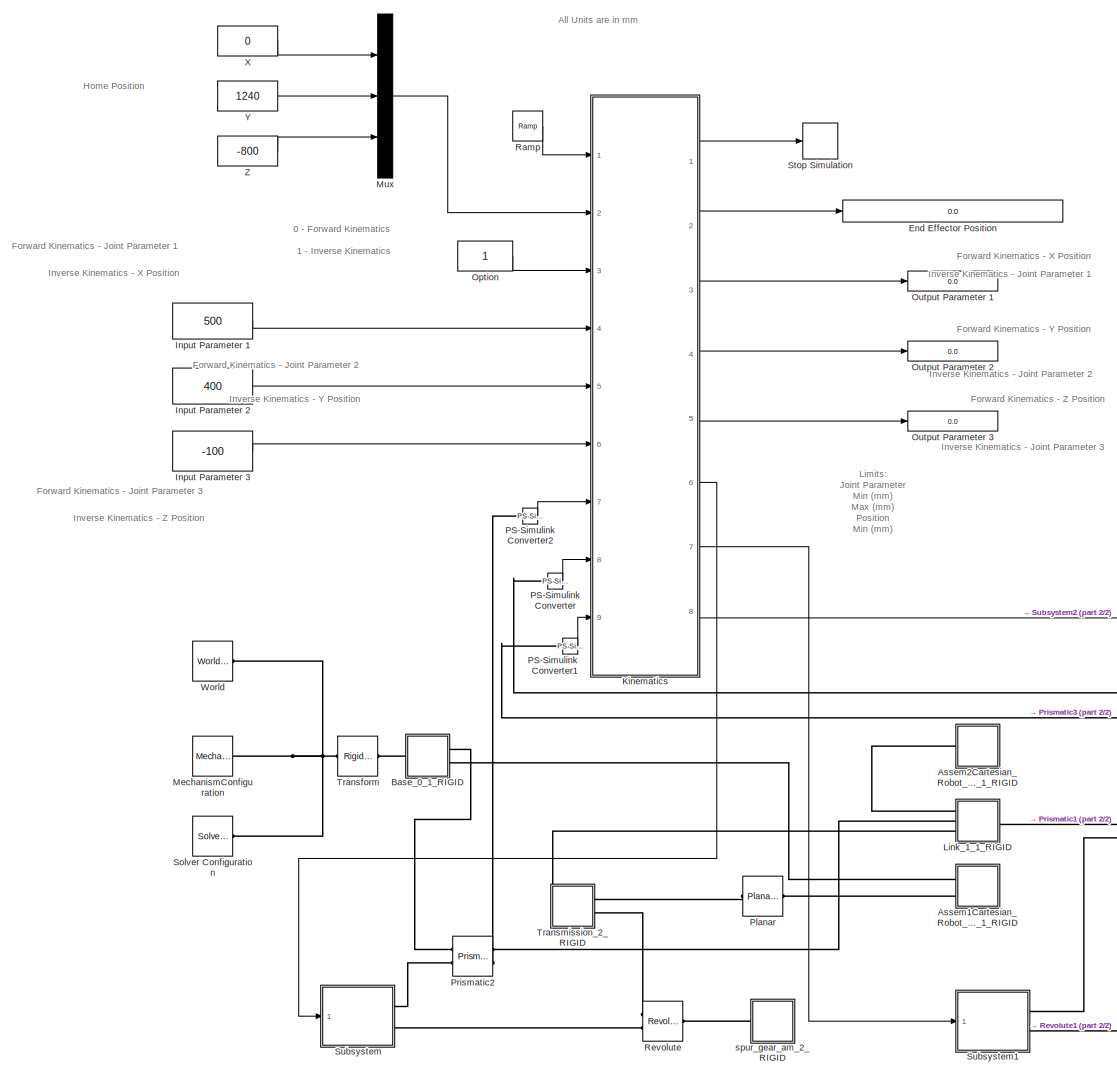
[diagram: root canvas - part 1/2, left side, full height]
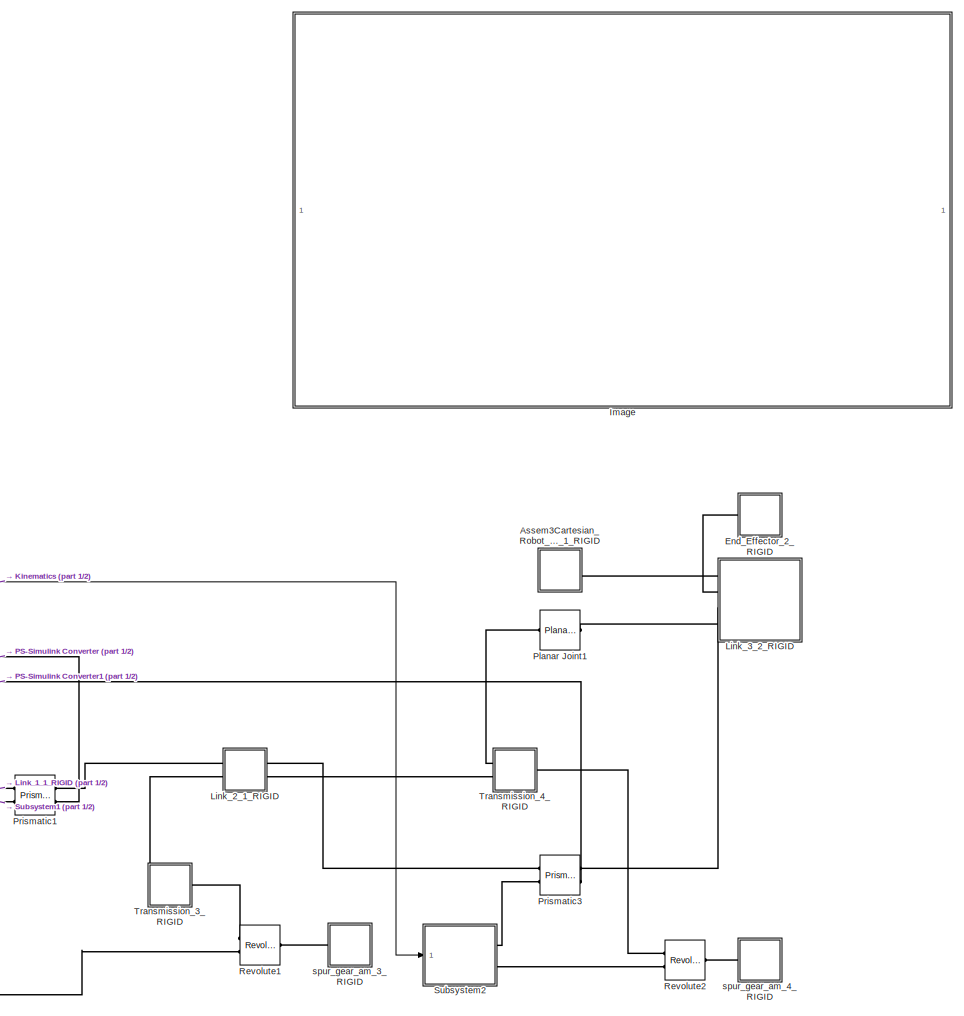
[diagram: root canvas - part 2/2, right side, full height]
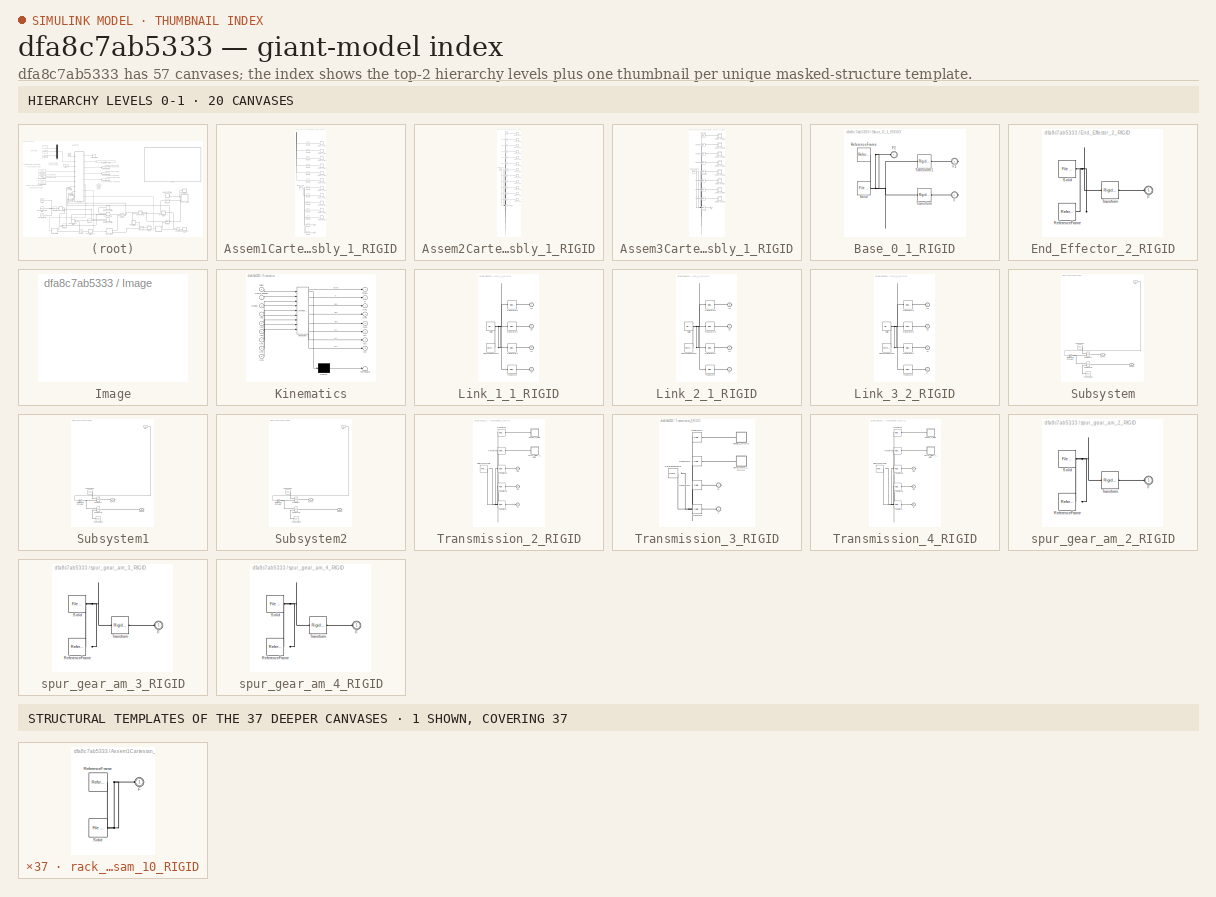
[diagram: thumbnail index - top-2 hierarchy levels (20 canvases) + 1 structural-template representatives of the remaining 37 canvases]
MODEL slx_dfa8c7ab5333
KIND model
CONFIG AbsTol = auto
CONFIG EnableMultiTasking = off
CONFIG FixedStep = auto
CONFIG MaxStep = auto
CONFIG MinStep = auto
CONFIG RelTol = 1e-3
CONFIG SampleTimeConstraint = Unconstrained
CONFIG Solver = VariableStepAuto
CONFIG SolverName = VariableStepAuto
CONFIG StartTime = 0.0
CONFIG StopTime = 10.0
WORKSPACE source: external: MATLAB File  (data not in archive)
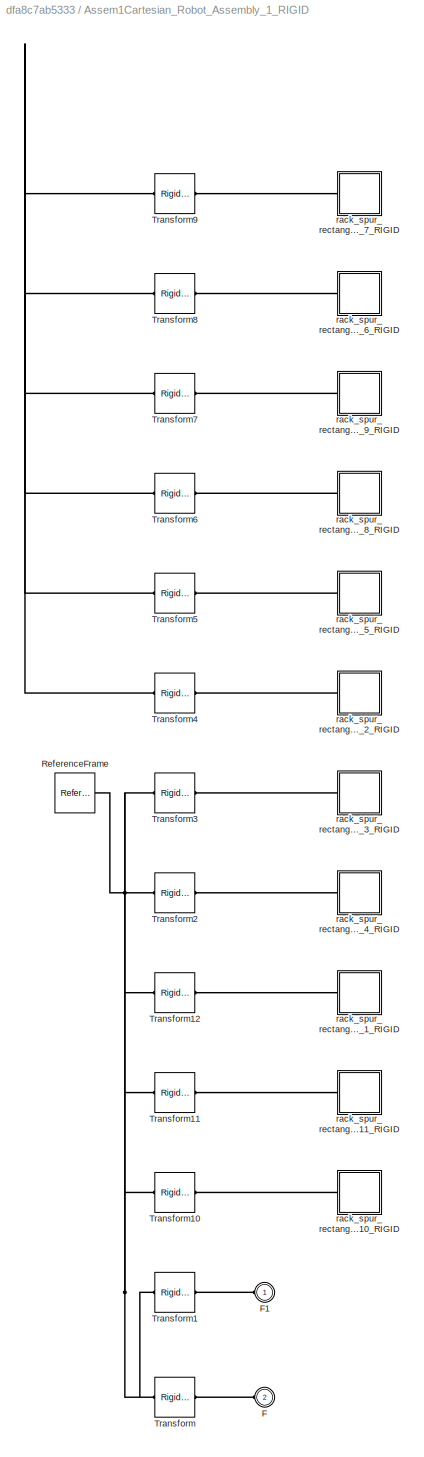
BLOCK [SubSystem] Assem1Cartesian_Robot_Assembly_1_RIGID
  Ports = [0, 0, 0, 0, 0, 2]
  RequestExecContextInheritance = off
BLOCK [PMIOPort] Assem1Cartesian_Robot_Assembly_1_RIGID/F
  Port = 2
  Side = Left
BLOCK [PMIOPort] Assem1Cartesian_Robot_Assembly_1_RIGID/F1
  Side = Left
BLOCK [Reference] Assem1Cartesian_Robot_Assembly_1_RIGID/ReferenceFrame  REF=sm_lib/Frames and
Transforms/Reference
Frame
  Ports = [0, 0, 0, 0, 0, 0, 1]
  SourceBlock = sm_lib/Frames and\nTransforms/Reference\nFrame
  SourceProductBaseCode = MS
  SourceType = Reference\nFrame
BLOCK [Reference] Assem1Cartesian_Robot_Assembly_1_RIGID/Transform  REF=sm_lib/Frames and
Transforms/Rigid
Transform
  Ports = [0, 0, 0, 0, 0, 1, 1]
  SourceBlock = sm_lib/Frames and\nTransforms/Rigid\nTransform
  SourceProductBaseCode = MS
  SourceType = Rigid\nTransform
BLOCK [Reference] Assem1Cartesian_Robot_Assembly_1_RIGID/Transform1  REF=sm_lib/Frames and
Transforms/Rigid
Transform
  Ports = [0, 0, 0, 0, 0, 1, 1]
  SourceBlock = sm_lib/Frames and\nTransforms/Rigid\nTransform
  SourceProductBaseCode = MS
  SourceType = Rigid\nTransform
BLOCK [Reference] Assem1Cartesian_Robot_Assembly_1_RIGID/Transform10  REF=sm_lib/Frames and
Transforms/Rigid
Transform
  Ports = [0, 0, 0, 0, 0, 1, 1]
  SourceBlock = sm_lib/Frames and\nTransforms/Rigid\nTransform
  SourceProductBaseCode = MS
  SourceType = Rigid\nTransform
BLOCK [Reference] Assem1Cartesian_Robot_Assembly_1_RIGID/Transform11  REF=sm_lib/Frames and
Transforms/Rigid
Transform
  Ports = [0, 0, 0, 0, 0, 1, 1]
  SourceBlock = sm_lib/Frames and\nTransforms/Rigid\nTransform
  SourceProductBaseCode = MS
  SourceType = Rigid\nTransform
BLOCK [Reference] Assem1Cartesian_Robot_Assembly_1_RIGID/Transform12  REF=sm_lib/Frames and
Transforms/Rigid
Transform
  Ports = [0, 0, 0, 0, 0, 1, 1]
  SourceBlock = sm_lib/Frames and\nTransforms/Rigid\nTransform
  SourceProductBaseCode = MS
  SourceType = Rigid\nTransform
BLOCK [Reference] Assem1Cartesian_Robot_Assembly_1_RIGID/Transform2  REF=sm_lib/Frames and
Transforms/Rigid
Transform
  Ports = [0, 0, 0, 0, 0, 1, 1]
  SourceBlock = sm_lib/Frames and\nTransforms/Rigid\nTransform
  SourceProductBaseCode = MS
  SourceType = Rigid\nTransform
BLOCK [Reference] Assem1Cartesian_Robot_Assembly_1_RIGID/Transform3  REF=sm_lib/Frames and
Transforms/Rigid
Transform
  Ports = [0, 0, 0, 0, 0, 1, 1]
  SourceBlock = sm_lib/Frames and\nTransforms/Rigid\nTransform
  SourceProductBaseCode = MS
  SourceType = Rigid\nTransform
BLOCK [Reference] Assem1Cartesian_Robot_Assembly_1_RIGID/Transform4  REF=sm_lib/Frames and
Transforms/Rigid
Transform
  Ports = [0, 0, 0, 0, 0, 1, 1]
  SourceBlock = sm_lib/Frames and\nTransforms/Rigid\nTransform
  SourceProductBaseCode = MS
  SourceType = Rigid\nTransform
BLOCK [Reference] Assem1Cartesian_Robot_Assembly_1_RIGID/Transform5  REF=sm_lib/Frames and
Transforms/Rigid
Transform
  Ports = [0, 0, 0, 0, 0, 1, 1]
  SourceBlock = sm_lib/Frames and\nTransforms/Rigid\nTransform
  SourceProductBaseCode = MS
  SourceType = Rigid\nTransform
BLOCK [Reference] Assem1Cartesian_Robot_Assembly_1_RIGID/Transform6  REF=sm_lib/Frames and
Transforms/Rigid
Transform
  Ports = [0, 0, 0, 0, 0, 1, 1]
  SourceBlock = sm_lib/Frames and\nTransforms/Rigid\nTransform
  SourceProductBaseCode = MS
  SourceType = Rigid\nTransform
BLOCK [Reference] Assem1Cartesian_Robot_Assembly_1_RIGID/Transform7  REF=sm_lib/Frames and
Transforms/Rigid
Transform
  Ports = [0, 0, 0, 0, 0, 1, 1]
  SourceBlock = sm_lib/Frames and\nTransforms/Rigid\nTransform
  SourceProductBaseCode = MS
  SourceType = Rigid\nTransform
BLOCK [Reference] Assem1Cartesian_Robot_Assembly_1_RIGID/Transform8  REF=sm_lib/Frames and
Transforms/Rigid
Transform
  Ports = [0, 0, 0, 0, 0, 1, 1]
  SourceBlock = sm_lib/Frames and\nTransforms/Rigid\nTransform
  SourceProductBaseCode = MS
  SourceType = Rigid\nTransform
BLOCK [Reference] Assem1Cartesian_Robot_Assembly_1_RIGID/Transform9  REF=sm_lib/Frames and
Transforms/Rigid
Transform
  Ports = [0, 0, 0, 0, 0, 1, 1]
  SourceBlock = sm_lib/Frames and\nTransforms/Rigid\nTransform
  SourceProductBaseCode = MS
  SourceType = Rigid\nTransform
BLOCK [SubSystem] Assem1Cartesian_Robot_Assembly_1_RIGID/rack_spur_rectangular_am_10_RIGID
  Ports = [0, 0, 0, 0, 0, 1]
  RequestExecContextInheritance = off
BLOCK [PMIOPort] Assem1Cartesian_Robot_Assembly_1_RIGID/rack_spur_rectangular_am_10_RIGID/F
  Side = Left
BLOCK [Reference] Assem1Cartesian_Robot_Assembly_1_RIGID/rack_spur_rectangular_am_10_RIGID/ReferenceFrame  REF=sm_lib/Frames and
Transforms/Reference
Frame
  Ports = [0, 0, 0, 0, 0, 0, 1]
  SourceBlock = sm_lib/Frames and\nTransforms/Reference\nFrame
  SourceProductBaseCode = MS
  SourceType = Reference\nFrame
BLOCK [Reference] Assem1Cartesian_Robot_Assembly_1_RIGID/rack_spur_rectangular_am_10_RIGID/Solid  REF=sm_lib/Body Elements/File Solid
  Ports = [0, 0, 0, 0, 0, 0, 1]
  SourceBlock = sm_lib/Body Elements/File Solid
  SourceProductBaseCode = MS
  SourceType = File Solid
BLOCK [SubSystem] Assem1Cartesian_Robot_Assembly_1_RIGID/rack_spur_rectangular_am_11_RIGID
  Ports = [0, 0, 0, 0, 0, 1]
  RequestExecContextInheritance = off
BLOCK [PMIOPort] Assem1Cartesian_Robot_Assembly_1_RIGID/rack_spur_rectangular_am_11_RIGID/F
  Side = Left
BLOCK [Reference] Assem1Cartesian_Robot_Assembly_1_RIGID/rack_spur_rectangular_am_11_RIGID/ReferenceFrame  REF=sm_lib/Frames and
Transforms/Reference
Frame
  Ports = [0, 0, 0, 0, 0, 0, 1]
  SourceBlock = sm_lib/Frames and\nTransforms/Reference\nFrame
  SourceProductBaseCode = MS
  SourceType = Reference\nFrame
BLOCK [Reference] Assem1Cartesian_Robot_Assembly_1_RIGID/rack_spur_rectangular_am_11_RIGID/Solid  REF=sm_lib/Body Elements/File Solid
  Ports = [0, 0, 0, 0, 0, 0, 1]
  SourceBlock = sm_lib/Body Elements/File Solid
  SourceProductBaseCode = MS
  SourceType = File Solid
BLOCK [SubSystem] Assem1Cartesian_Robot_Assembly_1_RIGID/rack_spur_rectangular_am_1_RIGID
  Ports = [0, 0, 0, 0, 0, 1]
  RequestExecContextInheritance = off
BLOCK [PMIOPort] Assem1Cartesian_Robot_Assembly_1_RIGID/rack_spur_rectangular_am_1_RIGID/F
  Side = Left
BLOCK [Reference] Assem1Cartesian_Robot_Assembly_1_RIGID/rack_spur_rectangular_am_1_RIGID/ReferenceFrame  REF=sm_lib/Frames and
Transforms/Reference
Frame
  Ports = [0, 0, 0, 0, 0, 0, 1]
  SourceBlock = sm_lib/Frames and\nTransforms/Reference\nFrame
  SourceProductBaseCode = MS
  SourceType = Reference\nFrame
BLOCK [Reference] Assem1Cartesian_Robot_Assembly_1_RIGID/rack_spur_rectangular_am_1_RIGID/Solid  REF=sm_lib/Body Elements/File Solid
  Ports = [0, 0, 0, 0, 0, 0, 1]
  SourceBlock = sm_lib/Body Elements/File Solid
  SourceProductBaseCode = MS
  SourceType = File Solid
BLOCK [SubSystem] Assem1Cartesian_Robot_Assembly_1_RIGID/rack_spur_rectangular_am_2_RIGID
  Ports = [0, 0, 0, 0, 0, 1]
  RequestExecContextInheritance = off
BLOCK [PMIOPort] Assem1Cartesian_Robot_Assembly_1_RIGID/rack_spur_rectangular_am_2_RIGID/F
  Side = Left
BLOCK [Reference] Assem1Cartesian_Robot_Assembly_1_RIGID/rack_spur_rectangular_am_2_RIGID/ReferenceFrame  REF=sm_lib/Frames and
Transforms/Reference
Frame
  Ports = [0, 0, 0, 0, 0, 0, 1]
  SourceBlock = sm_lib/Frames and\nTransforms/Reference\nFrame
  SourceProductBaseCode = MS
  SourceType = Reference\nFrame
BLOCK [Reference] Assem1Cartesian_Robot_Assembly_1_RIGID/rack_spur_rectangular_am_2_RIGID/Solid  REF=sm_lib/Body Elements/File Solid
  Ports = [0, 0, 0, 0, 0, 0, 1]
  SourceBlock = sm_lib/Body Elements/File Solid
  SourceProductBaseCode = MS
  SourceType = File Solid
BLOCK [SubSystem] Assem1Cartesian_Robot_Assembly_1_RIGID/rack_spur_rectangular_am_3_RIGID
  Ports = [0, 0, 0, 0, 0, 1]
  RequestExecContextInheritance = off
BLOCK [PMIOPort] Assem1Cartesian_Robot_Assembly_1_RIGID/rack_spur_rectangular_am_3_RIGID/F
  Side = Left
BLOCK [Reference] Assem1Cartesian_Robot_Assembly_1_RIGID/rack_spur_rectangular_am_3_RIGID/ReferenceFrame  REF=sm_lib/Frames and
Transforms/Reference
Frame
  Ports = [0, 0, 0, 0, 0, 0, 1]
  SourceBlock = sm_lib/Frames and\nTransforms/Reference\nFrame
  SourceProductBaseCode = MS
  SourceType = Reference\nFrame
BLOCK [Reference] Assem1Cartesian_Robot_Assembly_1_RIGID/rack_spur_rectangular_am_3_RIGID/Solid  REF=sm_lib/Body Elements/File Solid
  Ports = [0, 0, 0, 0, 0, 0, 1]
  SourceBlock = sm_lib/Body Elements/File Solid
  SourceProductBaseCode = MS
  SourceType = File Solid
BLOCK [SubSystem] Assem1Cartesian_Robot_Assembly_1_RIGID/rack_spur_rectangular_am_4_RIGID
  Ports = [0, 0, 0, 0, 0, 1]
  RequestExecContextInheritance = off
BLOCK [PMIOPort] Assem1Cartesian_Robot_Assembly_1_RIGID/rack_spur_rectangular_am_4_RIGID/F
  Side = Left
BLOCK [Reference] Assem1Cartesian_Robot_Assembly_1_RIGID/rack_spur_rectangular_am_4_RIGID/ReferenceFrame  REF=sm_lib/Frames and
Transforms/Reference
Frame
  Ports = [0, 0, 0, 0, 0, 0, 1]
  SourceBlock = sm_lib/Frames and\nTransforms/Reference\nFrame
  SourceProductBaseCode = MS
  SourceType = Reference\nFrame
BLOCK [Reference] Assem1Cartesian_Robot_Assembly_1_RIGID/rack_spur_rectangular_am_4_RIGID/Solid  REF=sm_lib/Body Elements/File Solid
  Ports = [0, 0, 0, 0, 0, 0, 1]
  SourceBlock = sm_lib/Body Elements/File Solid
  SourceProductBaseCode = MS
  SourceType = File Solid
BLOCK [SubSystem] Assem1Cartesian_Robot_Assembly_1_RIGID/rack_spur_rectangular_am_5_RIGID
  Ports = [0, 0, 0, 0, 0, 1]
  RequestExecContextInheritance = off
BLOCK [PMIOPort] Assem1Cartesian_Robot_Assembly_1_RIGID/rack_spur_rectangular_am_5_RIGID/F
  Side = Left
BLOCK [Reference] Assem1Cartesian_Robot_Assembly_1_RIGID/rack_spur_rectangular_am_5_RIGID/ReferenceFrame  REF=sm_lib/Frames and
Transforms/Reference
Frame
  Ports = [0, 0, 0, 0, 0, 0, 1]
  SourceBlock = sm_lib/Frames and\nTransforms/Reference\nFrame
  SourceProductBaseCode = MS
  SourceType = Reference\nFrame
BLOCK [Reference] Assem1Cartesian_Robot_Assembly_1_RIGID/rack_spur_rectangular_am_5_RIGID/Solid  REF=sm_lib/Body Elements/File Solid
  Ports = [0, 0, 0, 0, 0, 0, 1]
  SourceBlock = sm_lib/Body Elements/File Solid
  SourceProductBaseCode = MS
  SourceType = File Solid
BLOCK [SubSystem] Assem1Cartesian_Robot_Assembly_1_RIGID/rack_spur_rectangular_am_6_RIGID
  Ports = [0, 0, 0, 0, 0, 1]
  RequestExecContextInheritance = off
BLOCK [PMIOPort] Assem1Cartesian_Robot_Assembly_1_RIGID/rack_spur_rectangular_am_6_RIGID/F
  Side = Left
BLOCK [Reference] Assem1Cartesian_Robot_Assembly_1_RIGID/rack_spur_rectangular_am_6_RIGID/ReferenceFrame  REF=sm_lib/Frames and
Transforms/Reference
Frame
  Ports = [0, 0, 0, 0, 0, 0, 1]
  SourceBlock = sm_lib/Frames and\nTransforms/Reference\nFrame
  SourceProductBaseCode = MS
  SourceType = Reference\nFrame
BLOCK [Reference] Assem1Cartesian_Robot_Assembly_1_RIGID/rack_spur_rectangular_am_6_RIGID/Solid  REF=sm_lib/Body Elements/File Solid
  Ports = [0, 0, 0, 0, 0, 0, 1]
  SourceBlock = sm_lib/Body Elements/File Solid
  SourceProductBaseCode = MS
  SourceType = File Solid
BLOCK [SubSystem] Assem1Cartesian_Robot_Assembly_1_RIGID/rack_spur_rectangular_am_7_RIGID
  Ports = [0, 0, 0, 0, 0, 1]
  RequestExecContextInheritance = off
BLOCK [PMIOPort] Assem1Cartesian_Robot_Assembly_1_RIGID/rack_spur_rectangular_am_7_RIGID/F
  Side = Left
BLOCK [Reference] Assem1Cartesian_Robot_Assembly_1_RIGID/rack_spur_rectangular_am_7_RIGID/ReferenceFrame  REF=sm_lib/Frames and
Transforms/Reference
Frame
  Ports = [0, 0, 0, 0, 0, 0, 1]
  SourceBlock = sm_lib/Frames and\nTransforms/Reference\nFrame
  SourceProductBaseCode = MS
  SourceType = Reference\nFrame
BLOCK [Reference] Assem1Cartesian_Robot_Assembly_1_RIGID/rack_spur_rectangular_am_7_RIGID/Solid  REF=sm_lib/Body Elements/File Solid
  Ports = [0, 0, 0, 0, 0, 0, 1]
  SourceBlock = sm_lib/Body Elements/File Solid
  SourceProductBaseCode = MS
  SourceType = File Solid
BLOCK [SubSystem] Assem1Cartesian_Robot_Assembly_1_RIGID/rack_spur_rectangular_am_8_RIGID
  Ports = [0, 0, 0, 0, 0, 1]
  RequestExecContextInheritance = off
BLOCK [PMIOPort] Assem1Cartesian_Robot_Assembly_1_RIGID/rack_spur_rectangular_am_8_RIGID/F
  Side = Left
BLOCK [Reference] Assem1Cartesian_Robot_Assembly_1_RIGID/rack_spur_rectangular_am_8_RIGID/ReferenceFrame  REF=sm_lib/Frames and
Transforms/Reference
Frame
  Ports = [0, 0, 0, 0, 0, 0, 1]
  SourceBlock = sm_lib/Frames and\nTransforms/Reference\nFrame
  SourceProductBaseCode = MS
  SourceType = Reference\nFrame
BLOCK [Reference] Assem1Cartesian_Robot_Assembly_1_RIGID/rack_spur_rectangular_am_8_RIGID/Solid  REF=sm_lib/Body Elements/File Solid
  Ports = [0, 0, 0, 0, 0, 0, 1]
  SourceBlock = sm_lib/Body Elements/File Solid
  SourceProductBaseCode = MS
  SourceType = File Solid
BLOCK [SubSystem] Assem1Cartesian_Robot_Assembly_1_RIGID/rack_spur_rectangular_am_9_RIGID
  Ports = [0, 0, 0, 0, 0, 1]
  RequestExecContextInheritance = off
BLOCK [PMIOPort] Assem1Cartesian_Robot_Assembly_1_RIGID/rack_spur_rectangular_am_9_RIGID/F
  Side = Left
BLOCK [Reference] Assem1Cartesian_Robot_Assembly_1_RIGID/rack_spur_rectangular_am_9_RIGID/ReferenceFrame  REF=sm_lib/Frames and
Transforms/Reference
Frame
  Ports = [0, 0, 0, 0, 0, 0, 1]
  SourceBlock = sm_lib/Frames and\nTransforms/Reference\nFrame
  SourceProductBaseCode = MS
  SourceType = Reference\nFrame
BLOCK [Reference] Assem1Cartesian_Robot_Assembly_1_RIGID/rack_spur_rectangular_am_9_RIGID/Solid  REF=sm_lib/Body Elements/File Solid
  Ports = [0, 0, 0, 0, 0, 0, 1]
  SourceBlock = sm_lib/Body Elements/File Solid
  SourceProductBaseCode = MS
  SourceType = File Solid
BLOCK [SubSystem] Assem2Cartesian_Robot_Assembly_1_RIGID
  Ports = [0, 0, 0, 0, 0, 1]
  RequestExecContextInheritance = off
BLOCK [PMIOPort] Assem2Cartesian_Robot_Assembly_1_RIGID/F
  Side = Left
BLOCK [Reference] Assem2Cartesian_Robot_Assembly_1_RIGID/ReferenceFrame  REF=sm_lib/Frames and
Transforms/Reference
Frame
  Ports = [0, 0, 0, 0, 0, 0, 1]
  SourceBlock = sm_lib/Frames and\nTransforms/Reference\nFrame
  SourceProductBaseCode = MS
  SourceType = Reference\nFrame
BLOCK [Reference] Assem2Cartesian_Robot_Assembly_1_RIGID/Transform  REF=sm_lib/Frames and
Transforms/Rigid
Transform
  Ports = [0, 0, 0, 0, 0, 1, 1]
  SourceBlock = sm_lib/Frames and\nTransforms/Rigid\nTransform
  SourceProductBaseCode = MS
  SourceType = Rigid\nTransform
BLOCK [Reference] Assem2Cartesian_Robot_Assembly_1_RIGID/Transform1  REF=sm_lib/Frames and
Transforms/Rigid
Transform
  Ports = [0, 0, 0, 0, 0, 1, 1]
  SourceBlock = sm_lib/Frames and\nTransforms/Rigid\nTransform
  SourceProductBaseCode = MS
  SourceType = Rigid\nTransform
BLOCK [Reference] Assem2Cartesian_Robot_Assembly_1_RIGID/Transform10  REF=sm_lib/Frames and
Transforms/Rigid
Transform
  Ports = [0, 0, 0, 0, 0, 1, 1]
  SourceBlock = sm_lib/Frames and\nTransforms/Rigid\nTransform
  SourceProductBaseCode = MS
  SourceType = Rigid\nTransform
BLOCK [Reference] Assem2Cartesian_Robot_Assembly_1_RIGID/Transform11  REF=sm_lib/Frames and
Transforms/Rigid
Transform
  Ports = [0, 0, 0, 0, 0, 1, 1]
  SourceBlock = sm_lib/Frames and\nTransforms/Rigid\nTransform
  SourceProductBaseCode = MS
  SourceType = Rigid\nTransform
BLOCK [Reference] Assem2Cartesian_Robot_Assembly_1_RIGID/Transform12  REF=sm_lib/Frames and
Transforms/Rigid
Transform
  Ports = [0, 0, 0, 0, 0, 1, 1]
  SourceBlock = sm_lib/Frames and\nTransforms/Rigid\nTransform
  SourceProductBaseCode = MS
  SourceType = Rigid\nTransform
BLOCK [Reference] Assem2Cartesian_Robot_Assembly_1_RIGID/Transform2  REF=sm_lib/Frames and
Transforms/Rigid
Transform
  Ports = [0, 0, 0, 0, 0, 1, 1]
  SourceBlock = sm_lib/Frames and\nTransforms/Rigid\nTransform
  SourceProductBaseCode = MS
  SourceType = Rigid\nTransform
BLOCK [Reference] Assem2Cartesian_Robot_Assembly_1_RIGID/Transform3  REF=sm_lib/Frames and
Transforms/Rigid
Transform
  Ports = [0, 0, 0, 0, 0, 1, 1]
  SourceBlock = sm_lib/Frames and\nTransforms/Rigid\nTransform
  SourceProductBaseCode = MS
  SourceType = Rigid\nTransform
BLOCK [Reference] Assem2Cartesian_Robot_Assembly_1_RIGID/Transform4  REF=sm_lib/Frames and
Transforms/Rigid
Transform
  Ports = [0, 0, 0, 0, 0, 1, 1]
  SourceBlock = sm_lib/Frames and\nTransforms/Rigid\nTransform
  SourceProductBaseCode = MS
  SourceType = Rigid\nTransform
BLOCK [Reference] Assem2Cartesian_Robot_Assembly_1_RIGID/Transform5  REF=sm_lib/Frames and
Transforms/Rigid
Transform
  Ports = [0, 0, 0, 0, 0, 1, 1]
  SourceBlock = sm_lib/Frames and\nTransforms/Rigid\nTransform
  SourceProductBaseCode = MS
  SourceType = Rigid\nTransform
BLOCK [Reference] Assem2Cartesian_Robot_Assembly_1_RIGID/Transform6  REF=sm_lib/Frames and
Transforms/Rigid
Transform
  Ports = [0, 0, 0, 0, 0, 1, 1]
  SourceBlock = sm_lib/Frames and\nTransforms/Rigid\nTransform
  SourceProductBaseCode = MS
  SourceType = Rigid\nTransform
BLOCK [Reference] Assem2Cartesian_Robot_Assembly_1_RIGID/Transform7  REF=sm_lib/Frames and
Transforms/Rigid
Transform
  Ports = [0, 0, 0, 0, 0, 1, 1]
  SourceBlock = sm_lib/Frames and\nTransforms/Rigid\nTransform
  SourceProductBaseCode = MS
  SourceType = Rigid\nTransform
BLOCK [Reference] Assem2Cartesian_Robot_Assembly_1_RIGID/Transform8  REF=sm_lib/Frames and
Transforms/Rigid
Transform
  Ports = [0, 0, 0, 0, 0, 1, 1]
  SourceBlock = sm_lib/Frames and\nTransforms/Rigid\nTransform
  SourceProductBaseCode = MS
  SourceType = Rigid\nTransform
BLOCK [Reference] Assem2Cartesian_Robot_Assembly_1_RIGID/Transform9  REF=sm_lib/Frames and
Transforms/Rigid
Transform
  Ports = [0, 0, 0, 0, 0, 1, 1]
  SourceBlock = sm_lib/Frames and\nTransforms/Rigid\nTransform
  SourceProductBaseCode = MS
  SourceType = Rigid\nTransform
BLOCK [SubSystem] Assem2Cartesian_Robot_Assembly_1_RIGID/rack_spur_rectangular_am_10_RIGID
  Ports = [0, 0, 0, 0, 0, 1]
  RequestExecContextInheritance = off
BLOCK [PMIOPort] Assem2Cartesian_Robot_Assembly_1_RIGID/rack_spur_rectangular_am_10_RIGID/F
  Side = Left
BLOCK [Reference] Assem2Cartesian_Robot_Assembly_1_RIGID/rack_spur_rectangular_am_10_RIGID/ReferenceFrame  REF=sm_lib/Frames and
Transforms/Reference
Frame
  Ports = [0, 0, 0, 0, 0, 0, 1]
  SourceBlock = sm_lib/Frames and\nTransforms/Reference\nFrame
  SourceProductBaseCode = MS
  SourceType = Reference\nFrame
BLOCK [Reference] Assem2Cartesian_Robot_Assembly_1_RIGID/rack_spur_rectangular_am_10_RIGID/Solid  REF=sm_lib/Body Elements/File Solid
  Ports = [0, 0, 0, 0, 0, 0, 1]
  SourceBlock = sm_lib/Body Elements/File Solid
  SourceProductBaseCode = MS
  SourceType = File Solid
BLOCK [SubSystem] Assem2Cartesian_Robot_Assembly_1_RIGID/rack_spur_rectangular_am_11_RIGID
  Ports = [0, 0, 0, 0, 0, 1]
  RequestExecContextInheritance = off
BLOCK [PMIOPort] Assem2Cartesian_Robot_Assembly_1_RIGID/rack_spur_rectangular_am_11_RIGID/F
  Side = Left
BLOCK [Reference] Assem2Cartesian_Robot_Assembly_1_RIGID/rack_spur_rectangular_am_11_RIGID/ReferenceFrame  REF=sm_lib/Frames and
Transforms/Reference
Frame
  Ports = [0, 0, 0, 0, 0, 0, 1]
  SourceBlock = sm_lib/Frames and\nTransforms/Reference\nFrame
  SourceProductBaseCode = MS
  SourceType = Reference\nFrame
BLOCK [Reference] Assem2Cartesian_Robot_Assembly_1_RIGID/rack_spur_rectangular_am_11_RIGID/Solid  REF=sm_lib/Body Elements/File Solid
  Ports = [0, 0, 0, 0, 0, 0, 1]
  SourceBlock = sm_lib/Body Elements/File Solid
  SourceProductBaseCode = MS
  SourceType = File Solid
BLOCK [SubSystem] Assem2Cartesian_Robot_Assembly_1_RIGID/rack_spur_rectangular_am_12_RIGID
  Ports = [0, 0, 0, 0, 0, 1]
  RequestExecContextInheritance = off
BLOCK [PMIOPort] Assem2Cartesian_Robot_Assembly_1_RIGID/rack_spur_rectangular_am_12_RIGID/F
  Side = Left
BLOCK [Reference] Assem2Cartesian_Robot_Assembly_1_RIGID/rack_spur_rectangular_am_12_RIGID/ReferenceFrame  REF=sm_lib/Frames and
Transforms/Reference
Frame
  Ports = [0, 0, 0, 0, 0, 0, 1]
  SourceBlock = sm_lib/Frames and\nTransforms/Reference\nFrame
  SourceProductBaseCode = MS
  SourceType = Reference\nFrame
BLOCK [Reference] Assem2Cartesian_Robot_Assembly_1_RIGID/rack_spur_rectangular_am_12_RIGID/Solid  REF=sm_lib/Body Elements/File Solid
  Ports = [0, 0, 0, 0, 0, 0, 1]
  SourceBlock = sm_lib/Body Elements/File Solid
  SourceProductBaseCode = MS
  SourceType = File Solid
BLOCK [SubSystem] Assem2Cartesian_Robot_Assembly_1_RIGID/rack_spur_rectangular_am_1_RIGID
  Ports = [0, 0, 0, 0, 0, 1]
  RequestExecContextInheritance = off
BLOCK [PMIOPort] Assem2Cartesian_Robot_Assembly_1_RIGID/rack_spur_rectangular_am_1_RIGID/F
  Side = Left
BLOCK [Reference] Assem2Cartesian_Robot_Assembly_1_RIGID/rack_spur_rectangular_am_1_RIGID/ReferenceFrame  REF=sm_lib/Frames and
Transforms/Reference
Frame
  Ports = [0, 0, 0, 0, 0, 0, 1]
  SourceBlock = sm_lib/Frames and\nTransforms/Reference\nFrame
  SourceProductBaseCode = MS
  SourceType = Reference\nFrame
BLOCK [Reference] Assem2Cartesian_Robot_Assembly_1_RIGID/rack_spur_rectangular_am_1_RIGID/Solid  REF=sm_lib/Body Elements/File Solid
  Ports = [0, 0, 0, 0, 0, 0, 1]
  SourceBlock = sm_lib/Body Elements/File Solid
  SourceProductBaseCode = MS
  SourceType = File Solid
BLOCK [SubSystem] Assem2Cartesian_Robot_Assembly_1_RIGID/rack_spur_rectangular_am_2_RIGID
  Ports = [0, 0, 0, 0, 0, 1]
  RequestExecContextInheritance = off
BLOCK [PMIOPort] Assem2Cartesian_Robot_Assembly_1_RIGID/rack_spur_rectangular_am_2_RIGID/F
  Side = Left
BLOCK [Reference] Assem2Cartesian_Robot_Assembly_1_RIGID/rack_spur_rectangular_am_2_RIGID/ReferenceFrame  REF=sm_lib/Frames and
Transforms/Reference
Frame
  Ports = [0, 0, 0, 0, 0, 0, 1]
  SourceBlock = sm_lib/Frames and\nTransforms/Reference\nFrame
  SourceProductBaseCode = MS
  SourceType = Reference\nFrame
BLOCK [Reference] Assem2Cartesian_Robot_Assembly_1_RIGID/rack_spur_rectangular_am_2_RIGID/Solid  REF=sm_lib/Body Elements/File Solid
  Ports = [0, 0, 0, 0, 0, 0, 1]
  SourceBlock = sm_lib/Body Elements/File Solid
  SourceProductBaseCode = MS
  SourceType = File Solid
BLOCK [SubSystem] Assem2Cartesian_Robot_Assembly_1_RIGID/rack_spur_rectangular_am_3_RIGID
  Ports = [0, 0, 0, 0, 0, 1]
  RequestExecContextInheritance = off
BLOCK [PMIOPort] Assem2Cartesian_Robot_Assembly_1_RIGID/rack_spur_rectangular_am_3_RIGID/F
  Side = Left
BLOCK [Reference] Assem2Cartesian_Robot_Assembly_1_RIGID/rack_spur_rectangular_am_3_RIGID/ReferenceFrame  REF=sm_lib/Frames and
Transforms/Reference
Frame
  Ports = [0, 0, 0, 0, 0, 0, 1]
  SourceBlock = sm_lib/Frames and\nTransforms/Reference\nFrame
  SourceProductBaseCode = MS
  SourceType = Reference\nFrame
BLOCK [Reference] Assem2Cartesian_Robot_Assembly_1_RIGID/rack_spur_rectangular_am_3_RIGID/Solid  REF=sm_lib/Body Elements/File Solid
  Ports = [0, 0, 0, 0, 0, 0, 1]
  SourceBlock = sm_lib/Body Elements/File Solid
  SourceProductBaseCode = MS
  SourceType = File Solid
BLOCK [SubSystem] Assem2Cartesian_Robot_Assembly_1_RIGID/rack_spur_rectangular_am_4_RIGID
  Ports = [0, 0, 0, 0, 0, 1]
  RequestExecContextInheritance = off
BLOCK [PMIOPort] Assem2Cartesian_Robot_Assembly_1_RIGID/rack_spur_rectangular_am_4_RIGID/F
  Side = Left
BLOCK [Reference] Assem2Cartesian_Robot_Assembly_1_RIGID/rack_spur_rectangular_am_4_RIGID/ReferenceFrame  REF=sm_lib/Frames and
Transforms/Reference
Frame
  Ports = [0, 0, 0, 0, 0, 0, 1]
  SourceBlock = sm_lib/Frames and\nTransforms/Reference\nFrame
  SourceProductBaseCode = MS
  SourceType = Reference\nFrame
BLOCK [Reference] Assem2Cartesian_Robot_Assembly_1_RIGID/rack_spur_rectangular_am_4_RIGID/Solid  REF=sm_lib/Body Elements/File Solid
  Ports = [0, 0, 0, 0, 0, 0, 1]
  SourceBlock = sm_lib/Body Elements/File Solid
  SourceProductBaseCode = MS
  SourceType = File Solid
BLOCK [SubSystem] Assem2Cartesian_Robot_Assembly_1_RIGID/rack_spur_rectangular_am_5_RIGID
  Ports = [0, 0, 0, 0, 0, 1]
  RequestExecContextInheritance = off
BLOCK [PMIOPort] Assem2Cartesian_Robot_Assembly_1_RIGID/rack_spur_rectangular_am_5_RIGID/F
  Side = Left
BLOCK [Reference] Assem2Cartesian_Robot_Assembly_1_RIGID/rack_spur_rectangular_am_5_RIGID/ReferenceFrame  REF=sm_lib/Frames and
Transforms/Reference
Frame
  Ports = [0, 0, 0, 0, 0, 0, 1]
  SourceBlock = sm_lib/Frames and\nTransforms/Reference\nFrame
  SourceProductBaseCode = MS
  SourceType = Reference\nFrame
BLOCK [Reference] Assem2Cartesian_Robot_Assembly_1_RIGID/rack_spur_rectangular_am_5_RIGID/Solid  REF=sm_lib/Body Elements/File Solid
  Ports = [0, 0, 0, 0, 0, 0, 1]
  SourceBlock = sm_lib/Body Elements/File Solid
  SourceProductBaseCode = MS
  SourceType = File Solid
BLOCK [SubSystem] Assem2Cartesian_Robot_Assembly_1_RIGID/rack_spur_rectangular_am_6_RIGID
  Ports = [0, 0, 0, 0, 0, 1]
  RequestExecContextInheritance = off
BLOCK [PMIOPort] Assem2Cartesian_Robot_Assembly_1_RIGID/rack_spur_rectangular_am_6_RIGID/F
  Side = Left
BLOCK [Reference] Assem2Cartesian_Robot_Assembly_1_RIGID/rack_spur_rectangular_am_6_RIGID/ReferenceFrame  REF=sm_lib/Frames and
Transforms/Reference
Frame
  Ports = [0, 0, 0, 0, 0, 0, 1]
  SourceBlock = sm_lib/Frames and\nTransforms/Reference\nFrame
  SourceProductBaseCode = MS
  SourceType = Reference\nFrame
BLOCK [Reference] Assem2Cartesian_Robot_Assembly_1_RIGID/rack_spur_rectangular_am_6_RIGID/Solid  REF=sm_lib/Body Elements/File Solid
  Ports = [0, 0, 0, 0, 0, 0, 1]
  SourceBlock = sm_lib/Body Elements/File Solid
  SourceProductBaseCode = MS
  SourceType = File Solid
BLOCK [SubSystem] Assem2Cartesian_Robot_Assembly_1_RIGID/rack_spur_rectangular_am_7_RIGID
  Ports = [0, 0, 0, 0, 0, 1]
  RequestExecContextInheritance = off
BLOCK [PMIOPort] Assem2Cartesian_Robot_Assembly_1_RIGID/rack_spur_rectangular_am_7_RIGID/F
  Side = Left
BLOCK [Reference] Assem2Cartesian_Robot_Assembly_1_RIGID/rack_spur_rectangular_am_7_RIGID/ReferenceFrame  REF=sm_lib/Frames and
Transforms/Reference
Frame
  Ports = [0, 0, 0, 0, 0, 0, 1]
  SourceBlock = sm_lib/Frames and\nTransforms/Reference\nFrame
  SourceProductBaseCode = MS
  SourceType = Reference\nFrame
BLOCK [Reference] Assem2Cartesian_Robot_Assembly_1_RIGID/rack_spur_rectangular_am_7_RIGID/Solid  REF=sm_lib/Body Elements/File Solid
  Ports = [0, 0, 0, 0, 0, 0, 1]
  SourceBlock = sm_lib/Body Elements/File Solid
  SourceProductBaseCode = MS
  SourceType = File Solid
BLOCK [SubSystem] Assem2Cartesian_Robot_Assembly_1_RIGID/rack_spur_rectangular_am_8_RIGID
  Ports = [0, 0, 0, 0, 0, 1]
  RequestExecContextInheritance = off
BLOCK [PMIOPort] Assem2Cartesian_Robot_Assembly_1_RIGID/rack_spur_rectangular_am_8_RIGID/F
  Side = Left
BLOCK [Reference] Assem2Cartesian_Robot_Assembly_1_RIGID/rack_spur_rectangular_am_8_RIGID/ReferenceFrame  REF=sm_lib/Frames and
Transforms/Reference
Frame
  Ports = [0, 0, 0, 0, 0, 0, 1]
  SourceBlock = sm_lib/Frames and\nTransforms/Reference\nFrame
  SourceProductBaseCode = MS
  SourceType = Reference\nFrame
BLOCK [Reference] Assem2Cartesian_Robot_Assembly_1_RIGID/rack_spur_rectangular_am_8_RIGID/Solid  REF=sm_lib/Body Elements/File Solid
  Ports = [0, 0, 0, 0, 0, 0, 1]
  SourceBlock = sm_lib/Body Elements/File Solid
  SourceProductBaseCode = MS
  SourceType = File Solid
BLOCK [SubSystem] Assem2Cartesian_Robot_Assembly_1_RIGID/rack_spur_rectangular_am_9_RIGID
  Ports = [0, 0, 0, 0, 0, 1]
  RequestExecContextInheritance = off
BLOCK [PMIOPort] Assem2Cartesian_Robot_Assembly_1_RIGID/rack_spur_rectangular_am_9_RIGID/F
  Side = Left
BLOCK [Reference] Assem2Cartesian_Robot_Assembly_1_RIGID/rack_spur_rectangular_am_9_RIGID/ReferenceFrame  REF=sm_lib/Frames and
Transforms/Reference
Frame
  Ports = [0, 0, 0, 0, 0, 0, 1]
  SourceBlock = sm_lib/Frames and\nTransforms/Reference\nFrame
  SourceProductBaseCode = MS
  SourceType = Reference\nFrame
BLOCK [Reference] Assem2Cartesian_Robot_Assembly_1_RIGID/rack_spur_rectangular_am_9_RIGID/Solid  REF=sm_lib/Body Elements/File Solid
  Ports = [0, 0, 0, 0, 0, 0, 1]
  SourceBlock = sm_lib/Body Elements/File Solid
  SourceProductBaseCode = MS
  SourceType = File Solid
BLOCK [SubSystem] Assem3Cartesian_Robot_Assembly_1_RIGID
  Ports = [0, 0, 0, 0, 0, 1]
  RequestExecContextInheritance = off
BLOCK [PMIOPort] Assem3Cartesian_Robot_Assembly_1_RIGID/F
  Side = Left
BLOCK [Reference] Assem3Cartesian_Robot_Assembly_1_RIGID/ReferenceFrame  REF=sm_lib/Frames and
Transforms/Reference
Frame
  Ports = [0, 0, 0, 0, 0, 0, 1]
  SourceBlock = sm_lib/Frames and\nTransforms/Reference\nFrame
  SourceProductBaseCode = MS
  SourceType = Reference\nFrame
BLOCK [Reference] Assem3Cartesian_Robot_Assembly_1_RIGID/Transform  REF=sm_lib/Frames and
Transforms/Rigid
Transform
  Ports = [0, 0, 0, 0, 0, 1, 1]
  SourceBlock = sm_lib/Frames and\nTransforms/Rigid\nTransform
  SourceProductBaseCode = MS
  SourceType = Rigid\nTransform
BLOCK [Reference] Assem3Cartesian_Robot_Assembly_1_RIGID/Transform1  REF=sm_lib/Frames and
Transforms/Rigid
Transform
  Ports = [0, 0, 0, 0, 0, 1, 1]
  SourceBlock = sm_lib/Frames and\nTransforms/Rigid\nTransform
  SourceProductBaseCode = MS
  SourceType = Rigid\nTransform
BLOCK [Reference] Assem3Cartesian_Robot_Assembly_1_RIGID/Transform2  REF=sm_lib/Frames and
Transforms/Rigid
Transform
  Ports = [0, 0, 0, 0, 0, 1, 1]
  SourceBlock = sm_lib/Frames and\nTransforms/Rigid\nTransform
  SourceProductBaseCode = MS
  SourceType = Rigid\nTransform
BLOCK [Reference] Assem3Cartesian_Robot_Assembly_1_RIGID/Transform3  REF=sm_lib/Frames and
Transforms/Rigid
Transform
  Ports = [0, 0, 0, 0, 0, 1, 1]
  SourceBlock = sm_lib/Frames and\nTransforms/Rigid\nTransform
  SourceProductBaseCode = MS
  SourceType = Rigid\nTransform
BLOCK [Reference] Assem3Cartesian_Robot_Assembly_1_RIGID/Transform4  REF=sm_lib/Frames and
Transforms/Rigid
Transform
  Ports = [0, 0, 0, 0, 0, 1, 1]
  SourceBlock = sm_lib/Frames and\nTransforms/Rigid\nTransform
  SourceProductBaseCode = MS
  SourceType = Rigid\nTransform
BLOCK [Reference] Assem3Cartesian_Robot_Assembly_1_RIGID/Transform5  REF=sm_lib/Frames and
Transforms/Rigid
Transform
  Ports = [0, 0, 0, 0, 0, 1, 1]
  SourceBlock = sm_lib/Frames and\nTransforms/Rigid\nTransform
  SourceProductBaseCode = MS
  SourceType = Rigid\nTransform
BLOCK [Reference] Assem3Cartesian_Robot_Assembly_1_RIGID/Transform6  REF=sm_lib/Frames and
Transforms/Rigid
Transform
  Ports = [0, 0, 0, 0, 0, 1, 1]
  SourceBlock = sm_lib/Frames and\nTransforms/Rigid\nTransform
  SourceProductBaseCode = MS
  SourceType = Rigid\nTransform
BLOCK [Reference] Assem3Cartesian_Robot_Assembly_1_RIGID/Transform7  REF=sm_lib/Frames and
Transforms/Rigid
Transform
  Ports = [0, 0, 0, 0, 0, 1, 1]
  SourceBlock = sm_lib/Frames and\nTransforms/Rigid\nTransform
  SourceProductBaseCode = MS
  SourceType = Rigid\nTransform
BLOCK [Reference] Assem3Cartesian_Robot_Assembly_1_RIGID/Transform8  REF=sm_lib/Frames and
Transforms/Rigid
Transform
  Ports = [0, 0, 0, 0, 0, 1, 1]
  SourceBlock = sm_lib/Frames and\nTransforms/Rigid\nTransform
  SourceProductBaseCode = MS
  SourceType = Rigid\nTransform
BLOCK [SubSystem] Assem3Cartesian_Robot_Assembly_1_RIGID/rack_spur_rectangular_am_1_RIGID
  Ports = [0, 0, 0, 0, 0, 1]
  RequestExecContextInheritance = off
BLOCK [PMIOPort] Assem3Cartesian_Robot_Assembly_1_RIGID/rack_spur_rectangular_am_1_RIGID/F
  Side = Left
BLOCK [Reference] Assem3Cartesian_Robot_Assembly_1_RIGID/rack_spur_rectangular_am_1_RIGID/ReferenceFrame  REF=sm_lib/Frames and
Transforms/Reference
Frame
  Ports = [0, 0, 0, 0, 0, 0, 1]
  SourceBlock = sm_lib/Frames and\nTransforms/Reference\nFrame
  SourceProductBaseCode = MS
  SourceType = Reference\nFrame
BLOCK [Reference] Assem3Cartesian_Robot_Assembly_1_RIGID/rack_spur_rectangular_am_1_RIGID/Solid  REF=sm_lib/Body Elements/File Solid
  Ports = [0, 0, 0, 0, 0, 0, 1]
  SourceBlock = sm_lib/Body Elements/File Solid
  SourceProductBaseCode = MS
  SourceType = File Solid
BLOCK [SubSystem] Assem3Cartesian_Robot_Assembly_1_RIGID/rack_spur_rectangular_am_2_RIGID
  Ports = [0, 0, 0, 0, 0, 1]
  RequestExecContextInheritance = off
BLOCK [PMIOPort] Assem3Cartesian_Robot_Assembly_1_RIGID/rack_spur_rectangular_am_2_RIGID/F
  Side = Left
BLOCK [Reference] Assem3Cartesian_Robot_Assembly_1_RIGID/rack_spur_rectangular_am_2_RIGID/ReferenceFrame  REF=sm_lib/Frames and
Transforms/Reference
Frame
  Ports = [0, 0, 0, 0, 0, 0, 1]
  SourceBlock = sm_lib/Frames and\nTransforms/Reference\nFrame
  SourceProductBaseCode = MS
  SourceType = Reference\nFrame
BLOCK [Reference] Assem3Cartesian_Robot_Assembly_1_RIGID/rack_spur_rectangular_am_2_RIGID/Solid  REF=sm_lib/Body Elements/File Solid
  Ports = [0, 0, 0, 0, 0, 0, 1]
  SourceBlock = sm_lib/Body Elements/File Solid
  SourceProductBaseCode = MS
  SourceType = File Solid
BLOCK [SubSystem] Assem3Cartesian_Robot_Assembly_1_RIGID/rack_spur_rectangular_am_3_RIGID
  Ports = [0, 0, 0, 0, 0, 1]
  RequestExecContextInheritance = off
BLOCK [PMIOPort] Assem3Cartesian_Robot_Assembly_1_RIGID/rack_spur_rectangular_am_3_RIGID/F
  Side = Left
BLOCK [Reference] Assem3Cartesian_Robot_Assembly_1_RIGID/rack_spur_rectangular_am_3_RIGID/ReferenceFrame  REF=sm_lib/Frames and
Transforms/Reference
Frame
  Ports = [0, 0, 0, 0, 0, 0, 1]
  SourceBlock = sm_lib/Frames and\nTransforms/Reference\nFrame
  SourceProductBaseCode = MS
  SourceType = Reference\nFrame
BLOCK [Reference] Assem3Cartesian_Robot_Assembly_1_RIGID/rack_spur_rectangular_am_3_RIGID/Solid  REF=sm_lib/Body Elements/File Solid
  Ports = [0, 0, 0, 0, 0, 0, 1]
  SourceBlock = sm_lib/Body Elements/File Solid
  SourceProductBaseCode = MS
  SourceType = File Solid
BLOCK [SubSystem] Assem3Cartesian_Robot_Assembly_1_RIGID/rack_spur_rectangular_am_4_RIGID
  Ports = [0, 0, 0, 0, 0, 1]
  RequestExecContextInheritance = off
BLOCK [PMIOPort] Assem3Cartesian_Robot_Assembly_1_RIGID/rack_spur_rectangular_am_4_RIGID/F
  Side = Left
BLOCK [Reference] Assem3Cartesian_Robot_Assembly_1_RIGID/rack_spur_rectangular_am_4_RIGID/ReferenceFrame  REF=sm_lib/Frames and
Transforms/Reference
Frame
  Ports = [0, 0, 0, 0, 0, 0, 1]
  SourceBlock = sm_lib/Frames and\nTransforms/Reference\nFrame
  SourceProductBaseCode = MS
  SourceType = Reference\nFrame
BLOCK [Reference] Assem3Cartesian_Robot_Assembly_1_RIGID/rack_spur_rectangular_am_4_RIGID/Solid  REF=sm_lib/Body Elements/File Solid
  Ports = [0, 0, 0, 0, 0, 0, 1]
  SourceBlock = sm_lib/Body Elements/File Solid
  SourceProductBaseCode = MS
  SourceType = File Solid
BLOCK [SubSystem] Assem3Cartesian_Robot_Assembly_1_RIGID/rack_spur_rectangular_am_5_RIGID
  Ports = [0, 0, 0, 0, 0, 1]
  RequestExecContextInheritance = off
BLOCK [PMIOPort] Assem3Cartesian_Robot_Assembly_1_RIGID/rack_spur_rectangular_am_5_RIGID/F
  Side = Left
BLOCK [Reference] Assem3Cartesian_Robot_Assembly_1_RIGID/rack_spur_rectangular_am_5_RIGID/ReferenceFrame  REF=sm_lib/Frames and
Transforms/Reference
Frame
  Ports = [0, 0, 0, 0, 0, 0, 1]
  SourceBlock = sm_lib/Frames and\nTransforms/Reference\nFrame
  SourceProductBaseCode = MS
  SourceType = Reference\nFrame
BLOCK [Reference] Assem3Cartesian_Robot_Assembly_1_RIGID/rack_spur_rectangular_am_5_RIGID/Solid  REF=sm_lib/Body Elements/File Solid
  Ports = [0, 0, 0, 0, 0, 0, 1]
  SourceBlock = sm_lib/Body Elements/File Solid
  SourceProductBaseCode = MS
  SourceType = File Solid
BLOCK [SubSystem] Assem3Cartesian_Robot_Assembly_1_RIGID/rack_spur_rectangular_am_6_RIGID
  Ports = [0, 0, 0, 0, 0, 1]
  RequestExecContextInheritance = off
BLOCK [PMIOPort] Assem3Cartesian_Robot_Assembly_1_RIGID/rack_spur_rectangular_am_6_RIGID/F
  Side = Left
BLOCK [Reference] Assem3Cartesian_Robot_Assembly_1_RIGID/rack_spur_rectangular_am_6_RIGID/ReferenceFrame  REF=sm_lib/Frames and
Transforms/Reference
Frame
  Ports = [0, 0, 0, 0, 0, 0, 1]
  SourceBlock = sm_lib/Frames and\nTransforms/Reference\nFrame
  SourceProductBaseCode = MS
  SourceType = Reference\nFrame
BLOCK [Reference] Assem3Cartesian_Robot_Assembly_1_RIGID/rack_spur_rectangular_am_6_RIGID/Solid  REF=sm_lib/Body Elements/File Solid
  Ports = [0, 0, 0, 0, 0, 0, 1]
  SourceBlock = sm_lib/Body Elements/File Solid
  SourceProductBaseCode = MS
  SourceType = File Solid
BLOCK [SubSystem] Assem3Cartesian_Robot_Assembly_1_RIGID/rack_spur_rectangular_am_7_RIGID
  Ports = [0, 0, 0, 0, 0, 1]
  RequestExecContextInheritance = off
BLOCK [PMIOPort] Assem3Cartesian_Robot_Assembly_1_RIGID/rack_spur_rectangular_am_7_RIGID/F
  Side = Left
BLOCK [Reference] Assem3Cartesian_Robot_Assembly_1_RIGID/rack_spur_rectangular_am_7_RIGID/ReferenceFrame  REF=sm_lib/Frames and
Transforms/Reference
Frame
  Ports = [0, 0, 0, 0, 0, 0, 1]
  SourceBlock = sm_lib/Frames and\nTransforms/Reference\nFrame
  SourceProductBaseCode = MS
  SourceType = Reference\nFrame
BLOCK [Reference] Assem3Cartesian_Robot_Assembly_1_RIGID/rack_spur_rectangular_am_7_RIGID/Solid  REF=sm_lib/Body Elements/File Solid
  Ports = [0, 0, 0, 0, 0, 0, 1]
  SourceBlock = sm_lib/Body Elements/File Solid
  SourceProductBaseCode = MS
  SourceType = File Solid
BLOCK [SubSystem] Assem3Cartesian_Robot_Assembly_1_RIGID/rack_spur_rectangular_am_8_RIGID
  Ports = [0, 0, 0, 0, 0, 1]
  RequestExecContextInheritance = off
BLOCK [PMIOPort] Assem3Cartesian_Robot_Assembly_1_RIGID/rack_spur_rectangular_am_8_RIGID/F
  Side = Left
BLOCK [Reference] Assem3Cartesian_Robot_Assembly_1_RIGID/rack_spur_rectangular_am_8_RIGID/ReferenceFrame  REF=sm_lib/Frames and
Transforms/Reference
Frame
  Ports = [0, 0, 0, 0, 0, 0, 1]
  SourceBlock = sm_lib/Frames and\nTransforms/Reference\nFrame
  SourceProductBaseCode = MS
  SourceType = Reference\nFrame
BLOCK [Reference] Assem3Cartesian_Robot_Assembly_1_RIGID/rack_spur_rectangular_am_8_RIGID/Solid  REF=sm_lib/Body Elements/File Solid
  Ports = [0, 0, 0, 0, 0, 0, 1]
  SourceBlock = sm_lib/Body Elements/File Solid
  SourceProductBaseCode = MS
  SourceType = File Solid
BLOCK [SubSystem] Base_0_1_RIGID
  Ports = [0, 0, 0, 0, 0, 1, 2]
  RequestExecContextInheritance = off
BLOCK [PMIOPort] Base_0_1_RIGID/F
  Port = 2
  Side = Right
BLOCK [PMIOPort] Base_0_1_RIGID/F1
  Port = 3
  Side = Right
BLOCK [PMIOPort] Base_0_1_RIGID/F2
  Side = Left
BLOCK [Reference] Base_0_1_RIGID/ReferenceFrame  REF=sm_lib/Frames and
Transforms/Reference
Frame
  Ports = [0, 0, 0, 0, 0, 0, 1]
  SourceBlock = sm_lib/Frames and\nTransforms/Reference\nFrame
  SourceProductBaseCode = MS
  SourceType = Reference\nFrame
BLOCK [Reference] Base_0_1_RIGID/Solid  REF=sm_lib/Body Elements/File Solid
  Ports = [0, 0, 0, 0, 0, 0, 1]
  SourceBlock = sm_lib/Body Elements/File Solid
  SourceProductBaseCode = MS
  SourceType = File Solid
BLOCK [Reference] Base_0_1_RIGID/Transform  REF=sm_lib/Frames and
Transforms/Rigid
Transform
  Ports = [0, 0, 0, 0, 0, 1, 1]
  SourceBlock = sm_lib/Frames and\nTransforms/Rigid\nTransform
  SourceProductBaseCode = MS
  SourceType = Rigid\nTransform
BLOCK [Reference] Base_0_1_RIGID/Transform1  REF=sm_lib/Frames and
Transforms/Rigid
Transform
  Ports = [0, 0, 0, 0, 0, 1, 1]
  SourceBlock = sm_lib/Frames and\nTransforms/Rigid\nTransform
  SourceProductBaseCode = MS
  SourceType = Rigid\nTransform
BLOCK [Display] End Effector Position
  Decimation = 1
  Ports = [1]
BLOCK [SubSystem] End_Effector_2_RIGID
  Ports = [0, 0, 0, 0, 0, 1]
  RequestExecContextInheritance = off
BLOCK [PMIOPort] End_Effector_2_RIGID/F
  Side = Left
BLOCK [Reference] End_Effector_2_RIGID/ReferenceFrame  REF=sm_lib/Frames and
Transforms/Reference
Frame
  Ports = [0, 0, 0, 0, 0, 0, 1]
  SourceBlock = sm_lib/Frames and\nTransforms/Reference\nFrame
  SourceProductBaseCode = MS
  SourceType = Reference\nFrame
BLOCK [Reference] End_Effector_2_RIGID/Solid  REF=sm_lib/Body Elements/File Solid
  Ports = [0, 0, 0, 0, 0, 0, 1]
  SourceBlock = sm_lib/Body Elements/File Solid
  SourceProductBaseCode = MS
  SourceType = File Solid
BLOCK [Reference] End_Effector_2_RIGID/Transform  REF=sm_lib/Frames and
Transforms/Rigid
Transform
  Ports = [0, 0, 0, 0, 0, 1, 1]
  SourceBlock = sm_lib/Frames and\nTransforms/Rigid\nTransform
  SourceProductBaseCode = MS
  SourceType = Rigid\nTransform
BLOCK [SubSystem] Image
  Ports = []
  RequestExecContextInheritance = off
BLOCK [Constant] Input Parameter 1
  Value = 500
BLOCK [Constant] Input Parameter 2
  Value = 400
BLOCK [Constant] Input Parameter 3
  Value = -100
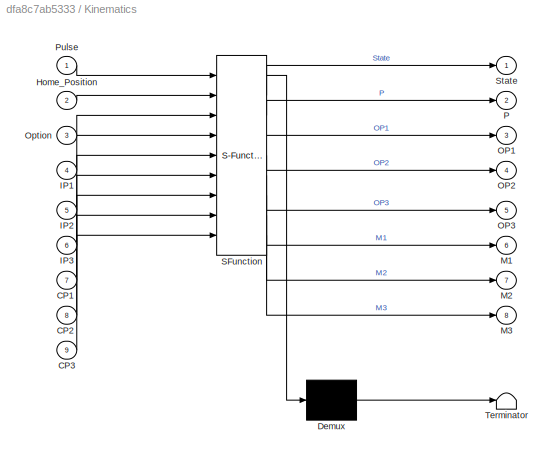
BLOCK [SubSystem] Kinematics
  ErrorFcn = Stateflow.Translate.translate
  PermitHierarchicalResolution = ExplicitOnly
  Ports = [9, 8]
  RequestExecContextInheritance = off
  SFBlockType = MATLAB Function
  TreatAsAtomicUnit = on
BLOCK [Demux] Kinematics/ Demux 
  Outputs = 1
  Ports = [1, 1]
BLOCK [S-Function] Kinematics/ SFunction 
  EnableBusSupport = off
  FunctionName = sf_sfun
  PortCounts = [9 9]
  Ports = [9, 9]
  SFcnIsStateOwnerBlock = off
  SFunctionDeploymentMode = off
  Tag = Stateflow S-Function 2
BLOCK [Terminator] Kinematics/ Terminator 
BLOCK [Inport] Kinematics/CP1
  Port = 7
BLOCK [Inport] Kinematics/CP2
  Port = 8
BLOCK [Inport] Kinematics/CP3
  Port = 9
BLOCK [Inport] Kinematics/Home_Position
  Port = 2
BLOCK [Inport] Kinematics/IP1
  Port = 4
BLOCK [Inport] Kinematics/IP2
  Port = 5
BLOCK [Inport] Kinematics/IP3
  Port = 6
BLOCK [Outport] Kinematics/M1
  Port = 6
BLOCK [Outport] Kinematics/M2
  Port = 7
BLOCK [Outport] Kinematics/M3
  Port = 8
BLOCK [Outport] Kinematics/OP1
  Port = 3
BLOCK [Outport] Kinematics/OP2
  Port = 4
BLOCK [Outport] Kinematics/OP3
  Port = 5
BLOCK [Inport] Kinematics/Option
  Port = 3
BLOCK [Outport] Kinematics/P
  Port = 2
BLOCK [Inport] Kinematics/Pulse
BLOCK [Outport] Kinematics/State
BLOCK [SubSystem] Link_1_1_RIGID
  Ports = [0, 0, 0, 0, 0, 3, 1]
  RequestExecContextInheritance = off
BLOCK [PMIOPort] Link_1_1_RIGID/F
  Port = 3
  Side = Left
BLOCK [PMIOPort] Link_1_1_RIGID/F1
  Port = 4
  Side = Right
BLOCK [PMIOPort] Link_1_1_RIGID/F2
  Port = 2
  Side = Left
BLOCK [PMIOPort] Link_1_1_RIGID/F3
  Side = Left
BLOCK [Reference] Link_1_1_RIGID/ReferenceFrame  REF=sm_lib/Frames and
Transforms/Reference
Frame
  Ports = [0, 0, 0, 0, 0, 0, 1]
  SourceBlock = sm_lib/Frames and\nTransforms/Reference\nFrame
  SourceProductBaseCode = MS
  SourceType = Reference\nFrame
BLOCK [Reference] Link_1_1_RIGID/Solid  REF=sm_lib/Body Elements/File Solid
  Ports = [0, 0, 0, 0, 0, 0, 1]
  SourceBlock = sm_lib/Body Elements/File Solid
  SourceProductBaseCode = MS
  SourceType = File Solid
BLOCK [Reference] Link_1_1_RIGID/Transform  REF=sm_lib/Frames and
Transforms/Rigid
Transform
  Ports = [0, 0, 0, 0, 0, 1, 1]
  SourceBlock = sm_lib/Frames and\nTransforms/Rigid\nTransform
  SourceProductBaseCode = MS
  SourceType = Rigid\nTransform
BLOCK [Reference] Link_1_1_RIGID/Transform1  REF=sm_lib/Frames and
Transforms/Rigid
Transform
  Ports = [0, 0, 0, 0, 0, 1, 1]
  SourceBlock = sm_lib/Frames and\nTransforms/Rigid\nTransform
  SourceProductBaseCode = MS
  SourceType = Rigid\nTransform
BLOCK [Reference] Link_1_1_RIGID/Transform2  REF=sm_lib/Frames and
Transforms/Rigid
Transform
  Ports = [0, 0, 0, 0, 0, 1, 1]
  SourceBlock = sm_lib/Frames and\nTransforms/Rigid\nTransform
  SourceProductBaseCode = MS
  SourceType = Rigid\nTransform
BLOCK [Reference] Link_1_1_RIGID/Transform3  REF=sm_lib/Frames and
Transforms/Rigid
Transform
  Ports = [0, 0, 0, 0, 0, 1, 1]
  SourceBlock = sm_lib/Frames and\nTransforms/Rigid\nTransform
  SourceProductBaseCode = MS
  SourceType = Rigid\nTransform
BLOCK [SubSystem] Link_2_1_RIGID
  Ports = [0, 0, 0, 0, 0, 2, 2]
  RequestExecContextInheritance = off
BLOCK [PMIOPort] Link_2_1_RIGID/F
  Port = 2
  Side = Left
BLOCK [PMIOPort] Link_2_1_RIGID/F1
  Port = 4
  Side = Right
BLOCK [PMIOPort] Link_2_1_RIGID/F2
  Side = Left
BLOCK [PMIOPort] Link_2_1_RIGID/F3
  Port = 3
  Side = Right
BLOCK [Reference] Link_2_1_RIGID/ReferenceFrame  REF=sm_lib/Frames and
Transforms/Reference
Frame
  Ports = [0, 0, 0, 0, 0, 0, 1]
  SourceBlock = sm_lib/Frames and\nTransforms/Reference\nFrame
  SourceProductBaseCode = MS
  SourceType = Reference\nFrame
BLOCK [Reference] Link_2_1_RIGID/Solid  REF=sm_lib/Body Elements/File Solid
  Ports = [0, 0, 0, 0, 0, 0, 1]
  SourceBlock = sm_lib/Body Elements/File Solid
  SourceProductBaseCode = MS
  SourceType = File Solid
BLOCK [Reference] Link_2_1_RIGID/Transform  REF=sm_lib/Frames and
Transforms/Rigid
Transform
  Ports = [0, 0, 0, 0, 0, 1, 1]
  SourceBlock = sm_lib/Frames and\nTransforms/Rigid\nTransform
  SourceProductBaseCode = MS
  SourceType = Rigid\nTransform
BLOCK [Reference] Link_2_1_RIGID/Transform1  REF=sm_lib/Frames and
Transforms/Rigid
Transform
  Ports = [0, 0, 0, 0, 0, 1, 1]
  SourceBlock = sm_lib/Frames and\nTransforms/Rigid\nTransform
  SourceProductBaseCode = MS
  SourceType = Rigid\nTransform
BLOCK [Reference] Link_2_1_RIGID/Transform2  REF=sm_lib/Frames and
Transforms/Rigid
Transform
  Ports = [0, 0, 0, 0, 0, 1, 1]
  SourceBlock = sm_lib/Frames and\nTransforms/Rigid\nTransform
  SourceProductBaseCode = MS
  SourceType = Rigid\nTransform
BLOCK [Reference] Link_2_1_RIGID/Transform3  REF=sm_lib/Frames and
Transforms/Rigid
Transform
  Ports = [0, 0, 0, 0, 0, 1, 1]
  SourceBlock = sm_lib/Frames and\nTransforms/Rigid\nTransform
  SourceProductBaseCode = MS
  SourceType = Rigid\nTransform
BLOCK [SubSystem] Link_3_2_RIGID
  Ports = [0, 0, 0, 0, 0, 4]
  RequestExecContextInheritance = off
BLOCK [PMIOPort] Link_3_2_RIGID/F
  Port = 4
  Side = Left
BLOCK [PMIOPort] Link_3_2_RIGID/F1
  Port = 3
  Side = Left
BLOCK [PMIOPort] Link_3_2_RIGID/F2
  Port = 2
  Side = Left
BLOCK [PMIOPort] Link_3_2_RIGID/F3
  Side = Left
BLOCK [Reference] Link_3_2_RIGID/ReferenceFrame  REF=sm_lib/Frames and
Transforms/Reference
Frame
  Ports = [0, 0, 0, 0, 0, 0, 1]
  SourceBlock = sm_lib/Frames and\nTransforms/Reference\nFrame
  SourceProductBaseCode = MS
  SourceType = Reference\nFrame
BLOCK [Reference] Link_3_2_RIGID/Solid  REF=sm_lib/Body Elements/File Solid
  Ports = [0, 0, 0, 0, 0, 0, 1]
  SourceBlock = sm_lib/Body Elements/File Solid
  SourceProductBaseCode = MS
  SourceType = File Solid
BLOCK [Reference] Link_3_2_RIGID/Transform  REF=sm_lib/Frames and
Transforms/Rigid
Transform
  Ports = [0, 0, 0, 0, 0, 1, 1]
  SourceBlock = sm_lib/Frames and\nTransforms/Rigid\nTransform
  SourceProductBaseCode = MS
  SourceType = Rigid\nTransform
BLOCK [Reference] Link_3_2_RIGID/Transform1  REF=sm_lib/Frames and
Transforms/Rigid
Transform
  Ports = [0, 0, 0, 0, 0, 1, 1]
  SourceBlock = sm_lib/Frames and\nTransforms/Rigid\nTransform
  SourceProductBaseCode = MS
  SourceType = Rigid\nTransform
BLOCK [Reference] Link_3_2_RIGID/Transform2  REF=sm_lib/Frames and
Transforms/Rigid
Transform
  Ports = [0, 0, 0, 0, 0, 1, 1]
  SourceBlock = sm_lib/Frames and\nTransforms/Rigid\nTransform
  SourceProductBaseCode = MS
  SourceType = Rigid\nTransform
BLOCK [Reference] Link_3_2_RIGID/Transform3  REF=sm_lib/Frames and
Transforms/Rigid
Transform
  Ports = [0, 0, 0, 0, 0, 1, 1]
  SourceBlock = sm_lib/Frames and\nTransforms/Rigid\nTransform
  SourceProductBaseCode = MS
  SourceType = Rigid\nTransform
BLOCK [Reference] MechanismConfiguration  REF=sm_lib/Utilities/Mechanism
Configuration
  Ports = [0, 0, 0, 0, 0, 0, 1]
  SourceBlock = sm_lib/Utilities/Mechanism\nConfiguration
  SourceProductBaseCode = MS
  SourceType = Mechanism\nConfiguration
BLOCK [Mux] Mux
  DisplayOption = bar
  Inputs = 3
  Ports = [3, 1]
BLOCK [Constant] Option
  OutMax = 1
  OutMin = 0
BLOCK [Display] Output Parameter 1
  Decimation = 1
  Format = long
  Ports = [1]
BLOCK [Display] Output Parameter 2
  Decimation = 1
  Format = long
  Ports = [1]
BLOCK [Display] Output Parameter 3
  Decimation = 1
  Format = long
  Ports = [1]
BLOCK [Reference] PS-Simulink Converter  REF=nesl_utility/PS-Simulink
Converter
  Ports = [0, 1, 0, 0, 0, 1]
  SourceBlock = nesl_utility/PS-Simulink\nConverter
  SourceProductBaseCode = SS
  SourceType = PS-Simulink\nConverter
BLOCK [Reference] PS-Simulink Converter1  REF=nesl_utility/PS-Simulink
Converter
  Ports = [0, 1, 0, 0, 0, 1]
  SourceBlock = nesl_utility/PS-Simulink\nConverter
  SourceProductBaseCode = SS
  SourceType = PS-Simulink\nConverter
BLOCK [Reference] PS-Simulink Converter2  REF=nesl_utility/PS-Simulink
Converter
  Ports = [0, 1, 0, 0, 0, 1]
  SourceBlock = nesl_utility/PS-Simulink\nConverter
  SourceProductBaseCode = SS
  SourceType = PS-Simulink\nConverter
BLOCK [Reference] Planar  REF=sm_lib/Joints/Planar Joint
  Ports = [0, 0, 0, 0, 0, 1, 1]
  SourceBlock = sm_lib/Joints/Planar Joint
  SourceProductBaseCode = MS
  SourceType = Planar Joint
BLOCK [Reference] Planar Joint1  REF=sm_lib/Joints/Planar Joint
  Ports = [0, 0, 0, 0, 0, 1, 1]
  SourceBlock = sm_lib/Joints/Planar Joint
  SourceProductBaseCode = MS
  SourceType = Planar Joint
BLOCK [Reference] Prismatic1  REF=sm_lib/Joints/Prismatic
Joint
  Ports = [0, 0, 0, 0, 0, 2, 2]
  SourceBlock = sm_lib/Joints/Prismatic\nJoint
  SourceProductBaseCode = MS
  SourceType = Prismatic\nJoint
BLOCK [Reference] Prismatic2  REF=sm_lib/Joints/Prismatic
Joint
  Ports = [0, 0, 0, 0, 0, 2, 2]
  SourceBlock = sm_lib/Joints/Prismatic\nJoint
  SourceProductBaseCode = MS
  SourceType = Prismatic\nJoint
BLOCK [Reference] Prismatic3  REF=sm_lib/Joints/Prismatic
Joint
  Ports = [0, 0, 0, 0, 0, 2, 2]
  SourceBlock = sm_lib/Joints/Prismatic\nJoint
  SourceProductBaseCode = MS
  SourceType = Prismatic\nJoint
BLOCK [Reference] Ramp  REF=simulink/Sources/Ramp
  Ports = [0, 1]
  SourceBlock = simulink/Sources/Ramp
  SourceProductBaseCode = SL
  SourceType = Ramp
BLOCK [Reference] Revolute  REF=sm_lib/Joints/Revolute Joint
  Ports = [0, 0, 0, 0, 0, 2, 1]
  SourceBlock = sm_lib/Joints/Revolute Joint
  SourceProductBaseCode = MS
  SourceType = Revolute Joint
BLOCK [Reference] Revolute1  REF=sm_lib/Joints/Revolute Joint
  Ports = [0, 0, 0, 0, 0, 2, 1]
  SourceBlock = sm_lib/Joints/Revolute Joint
  SourceProductBaseCode = MS
  SourceType = Revolute Joint
BLOCK [Reference] Revolute2  REF=sm_lib/Joints/Revolute Joint
  Ports = [0, 0, 0, 0, 0, 2, 1]
  SourceBlock = sm_lib/Joints/Revolute Joint
  SourceProductBaseCode = MS
  SourceType = Revolute Joint
BLOCK [Reference] Solver Configuration  REF=nesl_utility/Solver
Configuration
  Ports = [0, 0, 0, 0, 0, 0, 1]
  SourceBlock = nesl_utility/Solver\nConfiguration
  SourceProductBaseCode = SS
  SourceType = Solver\nConfiguration
BLOCK [Stop] Stop Simulation
BLOCK [SubSystem] Subsystem
  Ports = [1, 0, 0, 0, 0, 0, 2]
  RequestExecContextInheritance = off
BLOCK [PMIOPort] Subsystem/Conn1
  Side = Right
BLOCK [PMIOPort] Subsystem/Conn2
  Port = 2
  Side = Right
BLOCK [Inport] Subsystem/In1
BLOCK [Reference] Subsystem/PS Constant  REF=fl_lib/Physical Signals/Sources/PS Constant
  Ports = [0, 0, 0, 0, 0, 0, 1]
  SourceBlock = fl_lib/Physical Signals/Sources/PS Constant
  SourceProductBaseCode = SS
  SourceType = PS Constant
BLOCK [Reference] Subsystem/PS Constant1  REF=fl_lib/Physical Signals/Sources/PS Constant
  Ports = [0, 0, 0, 0, 0, 0, 1]
  SourceBlock = fl_lib/Physical Signals/Sources/PS Constant
  SourceProductBaseCode = SS
  SourceType = PS Constant
BLOCK [Reference] Subsystem/PS Product  REF=fl_lib/Physical Signals/Functions/PS Product
  Ports = [0, 0, 0, 0, 0, 2, 1]
  SourceBlock = fl_lib/Physical Signals/Functions/PS Product
  SourceProductBaseCode = SS
  SourceType = PS Product
BLOCK [Reference] Subsystem/PS Product1  REF=fl_lib/Physical Signals/Functions/PS Product
  Ports = [0, 0, 0, 0, 0, 2, 1]
  SourceBlock = fl_lib/Physical Signals/Functions/PS Product
  SourceProductBaseCode = SS
  SourceType = PS Product
BLOCK [Reference] Subsystem/Simulink-PS Converter  REF=nesl_utility/Simulink-PS
Converter
  Ports = [1, 0, 0, 0, 0, 0, 1]
  SourceBlock = nesl_utility/Simulink-PS\nConverter
  SourceProductBaseCode = SS
  SourceType = Simulink-PS\nConverter
BLOCK [SubSystem] Subsystem1
  Ports = [1, 0, 0, 0, 0, 0, 2]
  RequestExecContextInheritance = off
BLOCK [PMIOPort] Subsystem1/Conn1
  Side = Right
BLOCK [PMIOPort] Subsystem1/Conn2
  Port = 2
  Side = Right
BLOCK [Inport] Subsystem1/In1
BLOCK [Reference] Subsystem1/PS Constant  REF=fl_lib/Physical Signals/Sources/PS Constant
  Ports = [0, 0, 0, 0, 0, 0, 1]
  SourceBlock = fl_lib/Physical Signals/Sources/PS Constant
  SourceProductBaseCode = SS
  SourceType = PS Constant
BLOCK [Reference] Subsystem1/PS Constant1  REF=fl_lib/Physical Signals/Sources/PS Constant
  Ports = [0, 0, 0, 0, 0, 0, 1]
  SourceBlock = fl_lib/Physical Signals/Sources/PS Constant
  SourceProductBaseCode = SS
  SourceType = PS Constant
BLOCK [Reference] Subsystem1/PS Product  REF=fl_lib/Physical Signals/Functions/PS Product
  Ports = [0, 0, 0, 0, 0, 2, 1]
  SourceBlock = fl_lib/Physical Signals/Functions/PS Product
  SourceProductBaseCode = SS
  SourceType = PS Product
BLOCK [Reference] Subsystem1/PS Product1  REF=fl_lib/Physical Signals/Functions/PS Product
  Ports = [0, 0, 0, 0, 0, 2, 1]
  SourceBlock = fl_lib/Physical Signals/Functions/PS Product
  SourceProductBaseCode = SS
  SourceType = PS Product
BLOCK [Reference] Subsystem1/Simulink-PS Converter  REF=nesl_utility/Simulink-PS
Converter
  Ports = [1, 0, 0, 0, 0, 0, 1]
  SourceBlock = nesl_utility/Simulink-PS\nConverter
  SourceProductBaseCode = SS
  SourceType = Simulink-PS\nConverter
BLOCK [SubSystem] Subsystem2
  Ports = [1, 0, 0, 0, 0, 0, 2]
  RequestExecContextInheritance = off
BLOCK [PMIOPort] Subsystem2/Conn1
  Side = Right
BLOCK [PMIOPort] Subsystem2/Conn2
  Port = 2
  Side = Right
BLOCK [Inport] Subsystem2/In1
BLOCK [Reference] Subsystem2/PS Constant  REF=fl_lib/Physical Signals/Sources/PS Constant
  Ports = [0, 0, 0, 0, 0, 0, 1]
  SourceBlock = fl_lib/Physical Signals/Sources/PS Constant
  SourceProductBaseCode = SS
  SourceType = PS Constant
BLOCK [Reference] Subsystem2/PS Constant1  REF=fl_lib/Physical Signals/Sources/PS Constant
  Ports = [0, 0, 0, 0, 0, 0, 1]
  SourceBlock = fl_lib/Physical Signals/Sources/PS Constant
  SourceProductBaseCode = SS
  SourceType = PS Constant
BLOCK [Reference] Subsystem2/PS Product  REF=fl_lib/Physical Signals/Functions/PS Product
  Ports = [0, 0, 0, 0, 0, 2, 1]
  SourceBlock = fl_lib/Physical Signals/Functions/PS Product
  SourceProductBaseCode = SS
  SourceType = PS Product
BLOCK [Reference] Subsystem2/PS Product1  REF=fl_lib/Physical Signals/Functions/PS Product
  Ports = [0, 0, 0, 0, 0, 2, 1]
  SourceBlock = fl_lib/Physical Signals/Functions/PS Product
  SourceProductBaseCode = SS
  SourceType = PS Product
BLOCK [Reference] Subsystem2/Simulink-PS Converter  REF=nesl_utility/Simulink-PS
Converter
  Ports = [1, 0, 0, 0, 0, 0, 1]
  SourceBlock = nesl_utility/Simulink-PS\nConverter
  SourceProductBaseCode = SS
  SourceType = Simulink-PS\nConverter
BLOCK [Reference] Transform  REF=sm_lib/Frames and
Transforms/Rigid
Transform
  Ports = [0, 0, 0, 0, 0, 1, 1]
  SourceBlock = sm_lib/Frames and\nTransforms/Rigid\nTransform
  SourceProductBaseCode = MS
  SourceType = Rigid\nTransform
BLOCK [SubSystem] Transmission_2_RIGID
  Ports = [0, 0, 0, 0, 0, 1, 2]
  RequestExecContextInheritance = off
BLOCK [PMIOPort] Transmission_2_RIGID/F
  Side = Left
BLOCK [PMIOPort] Transmission_2_RIGID/F1
  Port = 3
  Side = Right
BLOCK [PMIOPort] Transmission_2_RIGID/F2
  Port = 2
  Side = Right
BLOCK [SubSystem] Transmission_2_RIGID/Flange_1_RIGID
  Ports = [0, 0, 0, 0, 0, 1]
  RequestExecContextInheritance = off
BLOCK [PMIOPort] Transmission_2_RIGID/Flange_1_RIGID/F
  Side = Left
BLOCK [Reference] Transmission_2_RIGID/Flange_1_RIGID/ReferenceFrame  REF=sm_lib/Frames and
Transforms/Reference
Frame
  Ports = [0, 0, 0, 0, 0, 0, 1]
  SourceBlock = sm_lib/Frames and\nTransforms/Reference\nFrame
  SourceProductBaseCode = MS
  SourceType = Reference\nFrame
BLOCK [Reference] Transmission_2_RIGID/Flange_1_RIGID/Solid  REF=sm_lib/Body Elements/File Solid
  Ports = [0, 0, 0, 0, 0, 0, 1]
  SourceBlock = sm_lib/Body Elements/File Solid
  SourceProductBaseCode = MS
  SourceType = File Solid
BLOCK [Reference] Transmission_2_RIGID/ReferenceFrame  REF=sm_lib/Frames and
Transforms/Reference
Frame
  Ports = [0, 0, 0, 0, 0, 0, 1]
  SourceBlock = sm_lib/Frames and\nTransforms/Reference\nFrame
  SourceProductBaseCode = MS
  SourceType = Reference\nFrame
BLOCK [SubSystem] Transmission_2_RIGID/Servo_Motor_1_RIGID
  Ports = [0, 0, 0, 0, 0, 1]
  RequestExecContextInheritance = off
BLOCK [PMIOPort] Transmission_2_RIGID/Servo_Motor_1_RIGID/F
  Side = Left
BLOCK [Reference] Transmission_2_RIGID/Servo_Motor_1_RIGID/ReferenceFrame  REF=sm_lib/Frames and
Transforms/Reference
Frame
  Ports = [0, 0, 0, 0, 0, 0, 1]
  SourceBlock = sm_lib/Frames and\nTransforms/Reference\nFrame
  SourceProductBaseCode = MS
  SourceType = Reference\nFrame
BLOCK [Reference] Transmission_2_RIGID/Servo_Motor_1_RIGID/Solid  REF=sm_lib/Body Elements/File Solid
  Ports = [0, 0, 0, 0, 0, 0, 1]
  SourceBlock = sm_lib/Body Elements/File Solid
  SourceProductBaseCode = MS
  SourceType = File Solid
BLOCK [Reference] Transmission_2_RIGID/Transform  REF=sm_lib/Frames and
Transforms/Rigid
Transform
  Ports = [0, 0, 0, 0, 0, 1, 1]
  SourceBlock = sm_lib/Frames and\nTransforms/Rigid\nTransform
  SourceProductBaseCode = MS
  SourceType = Rigid\nTransform
BLOCK [Reference] Transmission_2_RIGID/Transform1  REF=sm_lib/Frames and
Transforms/Rigid
Transform
  Ports = [0, 0, 0, 0, 0, 1, 1]
  SourceBlock = sm_lib/Frames and\nTransforms/Rigid\nTransform
  SourceProductBaseCode = MS
  SourceType = Rigid\nTransform
BLOCK [Reference] Transmission_2_RIGID/Transform2  REF=sm_lib/Frames and
Transforms/Rigid
Transform
  Ports = [0, 0, 0, 0, 0, 1, 1]
  SourceBlock = sm_lib/Frames and\nTransforms/Rigid\nTransform
  SourceProductBaseCode = MS
  SourceType = Rigid\nTransform
BLOCK [Reference] Transmission_2_RIGID/Transform3  REF=sm_lib/Frames and
Transforms/Rigid
Transform
  Ports = [0, 0, 0, 0, 0, 1, 1]
  SourceBlock = sm_lib/Frames and\nTransforms/Rigid\nTransform
  SourceProductBaseCode = MS
  SourceType = Rigid\nTransform
BLOCK [Reference] Transmission_2_RIGID/Transform4  REF=sm_lib/Frames and
Transforms/Rigid
Transform
  Ports = [0, 0, 0, 0, 0, 1, 1]
  SourceBlock = sm_lib/Frames and\nTransforms/Rigid\nTransform
  SourceProductBaseCode = MS
  SourceType = Rigid\nTransform
BLOCK [SubSystem] Transmission_3_RIGID
  Ports = [0, 0, 0, 0, 0, 1, 1]
  RequestExecContextInheritance = off
BLOCK [PMIOPort] Transmission_3_RIGID/F
  Side = Left
BLOCK [PMIOPort] Transmission_3_RIGID/F1
  Port = 2
  Side = Right
BLOCK [SubSystem] Transmission_3_RIGID/Flange_1_RIGID
  Ports = [0, 0, 0, 0, 0, 1]
  RequestExecContextInheritance = off
BLOCK [PMIOPort] Transmission_3_RIGID/Flange_1_RIGID/F
  Side = Left
BLOCK [Reference] Transmission_3_RIGID/Flange_1_RIGID/ReferenceFrame  REF=sm_lib/Frames and
Transforms/Reference
Frame
  Ports = [0, 0, 0, 0, 0, 0, 1]
  SourceBlock = sm_lib/Frames and\nTransforms/Reference\nFrame
  SourceProductBaseCode = MS
  SourceType = Reference\nFrame
BLOCK [Reference] Transmission_3_RIGID/Flange_1_RIGID/Solid  REF=sm_lib/Body Elements/File Solid
  Ports = [0, 0, 0, 0, 0, 0, 1]
  SourceBlock = sm_lib/Body Elements/File Solid
  SourceProductBaseCode = MS
  SourceType = File Solid
BLOCK [Reference] Transmission_3_RIGID/ReferenceFrame  REF=sm_lib/Frames and
Transforms/Reference
Frame
  Ports = [0, 0, 0, 0, 0, 0, 1]
  SourceBlock = sm_lib/Frames and\nTransforms/Reference\nFrame
  SourceProductBaseCode = MS
  SourceType = Reference\nFrame
BLOCK [SubSystem] Transmission_3_RIGID/Servo_Motor_1_RIGID
  Ports = [0, 0, 0, 0, 0, 1]
  RequestExecContextInheritance = off
BLOCK [PMIOPort] Transmission_3_RIGID/Servo_Motor_1_RIGID/F
  Side = Left
BLOCK [Reference] Transmission_3_RIGID/Servo_Motor_1_RIGID/ReferenceFrame  REF=sm_lib/Frames and
Transforms/Reference
Frame
  Ports = [0, 0, 0, 0, 0, 0, 1]
  SourceBlock = sm_lib/Frames and\nTransforms/Reference\nFrame
  SourceProductBaseCode = MS
  SourceType = Reference\nFrame
BLOCK [Reference] Transmission_3_RIGID/Servo_Motor_1_RIGID/Solid  REF=sm_lib/Body Elements/File Solid
  Ports = [0, 0, 0, 0, 0, 0, 1]
  SourceBlock = sm_lib/Body Elements/File Solid
  SourceProductBaseCode = MS
  SourceType = File Solid
BLOCK [Reference] Transmission_3_RIGID/Transform  REF=sm_lib/Frames and
Transforms/Rigid
Transform
  Ports = [0, 0, 0, 0, 0, 1, 1]
  SourceBlock = sm_lib/Frames and\nTransforms/Rigid\nTransform
  SourceProductBaseCode = MS
  SourceType = Rigid\nTransform
BLOCK [Reference] Transmission_3_RIGID/Transform1  REF=sm_lib/Frames and
Transforms/Rigid
Transform
  Ports = [0, 0, 0, 0, 0, 1, 1]
  SourceBlock = sm_lib/Frames and\nTransforms/Rigid\nTransform
  SourceProductBaseCode = MS
  SourceType = Rigid\nTransform
BLOCK [Reference] Transmission_3_RIGID/Transform2  REF=sm_lib/Frames and
Transforms/Rigid
Transform
  Ports = [0, 0, 0, 0, 0, 1, 1]
  SourceBlock = sm_lib/Frames and\nTransforms/Rigid\nTransform
  SourceProductBaseCode = MS
  SourceType = Rigid\nTransform
BLOCK [Reference] Transmission_3_RIGID/Transform3  REF=sm_lib/Frames and
Transforms/Rigid
Transform
  Ports = [0, 0, 0, 0, 0, 1, 1]
  SourceBlock = sm_lib/Frames and\nTransforms/Rigid\nTransform
  SourceProductBaseCode = MS
  SourceType = Rigid\nTransform
BLOCK [SubSystem] Transmission_4_RIGID
  Ports = [0, 0, 0, 0, 0, 2, 1]
  RequestExecContextInheritance = off
BLOCK [PMIOPort] Transmission_4_RIGID/F
  Port = 2
  Side = Left
BLOCK [PMIOPort] Transmission_4_RIGID/F1
  Side = Left
BLOCK [PMIOPort] Transmission_4_RIGID/F2
  Port = 3
  Side = Right
BLOCK [SubSystem] Transmission_4_RIGID/Flange_1_RIGID
  Ports = [0, 0, 0, 0, 0, 1]
  RequestExecContextInheritance = off
BLOCK [PMIOPort] Transmission_4_RIGID/Flange_1_RIGID/F
  Side = Left
BLOCK [Reference] Transmission_4_RIGID/Flange_1_RIGID/ReferenceFrame  REF=sm_lib/Frames and
Transforms/Reference
Frame
  Ports = [0, 0, 0, 0, 0, 0, 1]
  SourceBlock = sm_lib/Frames and\nTransforms/Reference\nFrame
  SourceProductBaseCode = MS
  SourceType = Reference\nFrame
BLOCK [Reference] Transmission_4_RIGID/Flange_1_RIGID/Solid  REF=sm_lib/Body Elements/File Solid
  Ports = [0, 0, 0, 0, 0, 0, 1]
  SourceBlock = sm_lib/Body Elements/File Solid
  SourceProductBaseCode = MS
  SourceType = File Solid
BLOCK [Reference] Transmission_4_RIGID/ReferenceFrame  REF=sm_lib/Frames and
Transforms/Reference
Frame
  Ports = [0, 0, 0, 0, 0, 0, 1]
  SourceBlock = sm_lib/Frames and\nTransforms/Reference\nFrame
  SourceProductBaseCode = MS
  SourceType = Reference\nFrame
BLOCK [SubSystem] Transmission_4_RIGID/Servo_Motor_1_RIGID
  Ports = [0, 0, 0, 0, 0, 1]
  RequestExecContextInheritance = off
BLOCK [PMIOPort] Transmission_4_RIGID/Servo_Motor_1_RIGID/F
  Side = Left
BLOCK [Reference] Transmission_4_RIGID/Servo_Motor_1_RIGID/ReferenceFrame  REF=sm_lib/Frames and
Transforms/Reference
Frame
  Ports = [0, 0, 0, 0, 0, 0, 1]
  SourceBlock = sm_lib/Frames and\nTransforms/Reference\nFrame
  SourceProductBaseCode = MS
  SourceType = Reference\nFrame
BLOCK [Reference] Transmission_4_RIGID/Servo_Motor_1_RIGID/Solid  REF=sm_lib/Body Elements/File Solid
  Ports = [0, 0, 0, 0, 0, 0, 1]
  SourceBlock = sm_lib/Body Elements/File Solid
  SourceProductBaseCode = MS
  SourceType = File Solid
BLOCK [Reference] Transmission_4_RIGID/Transform  REF=sm_lib/Frames and
Transforms/Rigid
Transform
  Ports = [0, 0, 0, 0, 0, 1, 1]
  SourceBlock = sm_lib/Frames and\nTransforms/Rigid\nTransform
  SourceProductBaseCode = MS
  SourceType = Rigid\nTransform
BLOCK [Reference] Transmission_4_RIGID/Transform1  REF=sm_lib/Frames and
Transforms/Rigid
Transform
  Ports = [0, 0, 0, 0, 0, 1, 1]
  SourceBlock = sm_lib/Frames and\nTransforms/Rigid\nTransform
  SourceProductBaseCode = MS
  SourceType = Rigid\nTransform
BLOCK [Reference] Transmission_4_RIGID/Transform2  REF=sm_lib/Frames and
Transforms/Rigid
Transform
  Ports = [0, 0, 0, 0, 0, 1, 1]
  SourceBlock = sm_lib/Frames and\nTransforms/Rigid\nTransform
  SourceProductBaseCode = MS
  SourceType = Rigid\nTransform
BLOCK [Reference] Transmission_4_RIGID/Transform3  REF=sm_lib/Frames and
Transforms/Rigid
Transform
  Ports = [0, 0, 0, 0, 0, 1, 1]
  SourceBlock = sm_lib/Frames and\nTransforms/Rigid\nTransform
  SourceProductBaseCode = MS
  SourceType = Rigid\nTransform
BLOCK [Reference] Transmission_4_RIGID/Transform4  REF=sm_lib/Frames and
Transforms/Rigid
Transform
  Ports = [0, 0, 0, 0, 0, 1, 1]
  SourceBlock = sm_lib/Frames and\nTransforms/Rigid\nTransform
  SourceProductBaseCode = MS
  SourceType = Rigid\nTransform
BLOCK [Reference] World  REF=sm_lib/Frames and
Transforms/World Frame
  Ports = [0, 0, 0, 0, 0, 0, 1]
  SourceBlock = sm_lib/Frames and\nTransforms/World Frame
  SourceProductBaseCode = MS
  SourceType = World Frame
BLOCK [Constant] X
  Value = 0
BLOCK [Constant] Y
  Value = 1240
BLOCK [Constant] Z
  Value = -800
BLOCK [SubSystem] spur_gear_am_2_RIGID
  Ports = [0, 0, 0, 0, 0, 1]
  RequestExecContextInheritance = off
BLOCK [PMIOPort] spur_gear_am_2_RIGID/F
  Side = Left
BLOCK [Reference] spur_gear_am_2_RIGID/ReferenceFrame  REF=sm_lib/Frames and
Transforms/Reference
Frame
  Ports = [0, 0, 0, 0, 0, 0, 1]
  SourceBlock = sm_lib/Frames and\nTransforms/Reference\nFrame
  SourceProductBaseCode = MS
  SourceType = Reference\nFrame
BLOCK [Reference] spur_gear_am_2_RIGID/Solid  REF=sm_lib/Body Elements/File Solid
  Ports = [0, 0, 0, 0, 0, 0, 1]
  SourceBlock = sm_lib/Body Elements/File Solid
  SourceProductBaseCode = MS
  SourceType = File Solid
BLOCK [Reference] spur_gear_am_2_RIGID/Transform  REF=sm_lib/Frames and
Transforms/Rigid
Transform
  Ports = [0, 0, 0, 0, 0, 1, 1]
  SourceBlock = sm_lib/Frames and\nTransforms/Rigid\nTransform
  SourceProductBaseCode = MS
  SourceType = Rigid\nTransform
BLOCK [SubSystem] spur_gear_am_3_RIGID
  Ports = [0, 0, 0, 0, 0, 1]
  RequestExecContextInheritance = off
BLOCK [PMIOPort] spur_gear_am_3_RIGID/F
  Side = Left
BLOCK [Reference] spur_gear_am_3_RIGID/ReferenceFrame  REF=sm_lib/Frames and
Transforms/Reference
Frame
  Ports = [0, 0, 0, 0, 0, 0, 1]
  SourceBlock = sm_lib/Frames and\nTransforms/Reference\nFrame
  SourceProductBaseCode = MS
  SourceType = Reference\nFrame
BLOCK [Reference] spur_gear_am_3_RIGID/Solid  REF=sm_lib/Body Elements/File Solid
  Ports = [0, 0, 0, 0, 0, 0, 1]
  SourceBlock = sm_lib/Body Elements/File Solid
  SourceProductBaseCode = MS
  SourceType = File Solid
BLOCK [Reference] spur_gear_am_3_RIGID/Transform  REF=sm_lib/Frames and
Transforms/Rigid
Transform
  Ports = [0, 0, 0, 0, 0, 1, 1]
  SourceBlock = sm_lib/Frames and\nTransforms/Rigid\nTransform
  SourceProductBaseCode = MS
  SourceType = Rigid\nTransform
BLOCK [SubSystem] spur_gear_am_4_RIGID
  Ports = [0, 0, 0, 0, 0, 1]
  RequestExecContextInheritance = off
BLOCK [PMIOPort] spur_gear_am_4_RIGID/F
  Side = Left
BLOCK [Reference] spur_gear_am_4_RIGID/ReferenceFrame  REF=sm_lib/Frames and
Transforms/Reference
Frame
  Ports = [0, 0, 0, 0, 0, 0, 1]
  SourceBlock = sm_lib/Frames and\nTransforms/Reference\nFrame
  SourceProductBaseCode = MS
  SourceType = Reference\nFrame
BLOCK [Reference] spur_gear_am_4_RIGID/Solid  REF=sm_lib/Body Elements/File Solid
  Ports = [0, 0, 0, 0, 0, 0, 1]
  SourceBlock = sm_lib/Body Elements/File Solid
  SourceProductBaseCode = MS
  SourceType = File Solid
BLOCK [Reference] spur_gear_am_4_RIGID/Transform  REF=sm_lib/Frames and
Transforms/Rigid
Transform
  Ports = [0, 0, 0, 0, 0, 1, 1]
  SourceBlock = sm_lib/Frames and\nTransforms/Rigid\nTransform
  SourceProductBaseCode = MS
  SourceType = Rigid\nTransform
ANNOTATION (root): 0 - Forward Kinematics
ANNOTATION (root): All Units are in mm
ANNOTATION (root): Limits: Joint Parameter Min (mm) Max (mm) Position Min (mm) Max (mm) Joint 1 0 800 X 0 700 Joint 2 0 700 Y 390 1240 Joint 3 0 850 Z -800 0
ANNOTATION (root): Inverse Kinematics - Joint Parameter 1
ANNOTATION (root): Inverse Kinematics - Joint Parameter 2
ANNOTATION (root): Inverse Kinematics - Joint Parameter 3
ANNOTATION (root): Inverse Kinematics - X Position
ANNOTATION (root): Inverse Kinematics - Y Position
ANNOTATION (root): Inverse Kinematics - Z Position
ANNOTATION (root): 1 - Inverse Kinematics
ANNOTATION (root): Forward Kinematics - Joint Parameter 1
ANNOTATION (root): Forward Kinematics - Joint Parameter 2
ANNOTATION (root): Forward Kinematics - Joint Parameter 3
ANNOTATION (root): Forward Kinematics - X Position
ANNOTATION (root): Forward Kinematics - Y Position
ANNOTATION (root): Forward Kinematics - Z Position
ANNOTATION (root): Home Position
LINE Input Parameter 1:1 -> Kinematics:4
LINE Input Parameter 2:1 -> Kinematics:5
LINE Input Parameter 3:1 -> Kinematics:6
LINE Kinematics:1 -> Stop Simulation:1
LINE Kinematics:2 -> End Effector Position:1
LINE Kinematics:3 -> Output Parameter 1:1
LINE Kinematics:4 -> Output Parameter 2:1
LINE Kinematics:5 -> Output Parameter 3:1
LINE Kinematics:6 -> Subsystem:1
LINE Kinematics:7 -> Subsystem1:1
LINE Kinematics:8 -> Subsystem2:1
LINE Mux:1 -> Kinematics:2
LINE Option:1 -> Kinematics:3
LINE PS-Simulink Converter1:1 -> Kinematics:9
LINE PS-Simulink Converter2:1 -> Kinematics:7
LINE PS-Simulink Converter:1 -> Kinematics:8
LINE Ramp:1 -> Kinematics:1
LINE Subsystem/In1:1 -> Subsystem/Simulink-PS Converter:1
LINE Subsystem1/In1:1 -> Subsystem1/Simulink-PS Converter:1
LINE Subsystem2/In1:1 -> Subsystem2/Simulink-PS Converter:1
LINE X:1 -> Mux:1
LINE Y:1 -> Mux:2
LINE Z:1 -> Mux:3
PLINE Assem1Cartesian_Robot_Assembly_1_RIGID/F1:RConn1 -- Assem1Cartesian_Robot_Assembly_1_RIGID/Transform1:RConn1
PLINE Assem1Cartesian_Robot_Assembly_1_RIGID/F:RConn1 -- Assem1Cartesian_Robot_Assembly_1_RIGID/Transform:RConn1
PNET net1: Assem1Cartesian_Robot_Assembly_1_RIGID/ReferenceFrame:RConn1 -- Assem1Cartesian_Robot_Assembly_1_RIGID/Transform10:LConn1 -- Assem1Cartesian_Robot_Assembly_1_RIGID/Transform11:LConn1 -- Assem1Cartesian_Robot_Assembly_1_RIGID/Transform12:LConn1 -- Assem1Cartesian_Robot_Assembly_1_RIGID/Transform1:LConn1 -- Assem1Cartesian_Robot_Assembly_1_RIGID/Transform2:LConn1 -- Assem1Cartesian_Robot_Assembly_1_RIGID/Transform3:LConn1 -- Assem1Cartesian_Robot_Assembly_1_RIGID/Transform4:LConn1 -- Assem1Cartesian_Robot_Assembly_1_RIGID/Transform5:LConn1 -- Assem1Cartesian_Robot_Assembly_1_RIGID/Transform6:LConn1 -- Assem1Cartesian_Robot_Assembly_1_RIGID/Transform7:LConn1 -- Assem1Cartesian_Robot_Assembly_1_RIGID/Transform8:LConn1 -- Assem1Cartesian_Robot_Assembly_1_RIGID/Transform9:LConn1 -- Assem1Cartesian_Robot_Assembly_1_RIGID/Transform:LConn1
PLINE Assem1Cartesian_Robot_Assembly_1_RIGID/Transform10:RConn1 -- Assem1Cartesian_Robot_Assembly_1_RIGID/rack_spur_rectangular_am_10_RIGID:LConn1
PLINE Assem1Cartesian_Robot_Assembly_1_RIGID/Transform11:RConn1 -- Assem1Cartesian_Robot_Assembly_1_RIGID/rack_spur_rectangular_am_11_RIGID:LConn1
PLINE Assem1Cartesian_Robot_Assembly_1_RIGID/Transform12:RConn1 -- Assem1Cartesian_Robot_Assembly_1_RIGID/rack_spur_rectangular_am_1_RIGID:LConn1
PLINE Assem1Cartesian_Robot_Assembly_1_RIGID/Transform2:RConn1 -- Assem1Cartesian_Robot_Assembly_1_RIGID/rack_spur_rectangular_am_4_RIGID:LConn1
PLINE Assem1Cartesian_Robot_Assembly_1_RIGID/Transform3:RConn1 -- Assem1Cartesian_Robot_Assembly_1_RIGID/rack_spur_rectangular_am_3_RIGID:LConn1
PLINE Assem1Cartesian_Robot_Assembly_1_RIGID/Transform4:RConn1 -- Assem1Cartesian_Robot_Assembly_1_RIGID/rack_spur_rectangular_am_2_RIGID:LConn1
PLINE Assem1Cartesian_Robot_Assembly_1_RIGID/Transform5:RConn1 -- Assem1Cartesian_Robot_Assembly_1_RIGID/rack_spur_rectangular_am_5_RIGID:LConn1
PLINE Assem1Cartesian_Robot_Assembly_1_RIGID/Transform6:RConn1 -- Assem1Cartesian_Robot_Assembly_1_RIGID/rack_spur_rectangular_am_8_RIGID:LConn1
PLINE Assem1Cartesian_Robot_Assembly_1_RIGID/Transform7:RConn1 -- Assem1Cartesian_Robot_Assembly_1_RIGID/rack_spur_rectangular_am_9_RIGID:LConn1
PLINE Assem1Cartesian_Robot_Assembly_1_RIGID/Transform8:RConn1 -- Assem1Cartesian_Robot_Assembly_1_RIGID/rack_spur_rectangular_am_6_RIGID:LConn1
PLINE Assem1Cartesian_Robot_Assembly_1_RIGID/Transform9:RConn1 -- Assem1Cartesian_Robot_Assembly_1_RIGID/rack_spur_rectangular_am_7_RIGID:LConn1
PNET net2: Assem1Cartesian_Robot_Assembly_1_RIGID/rack_spur_rectangular_am_10_RIGID/F:RConn1 -- Assem1Cartesian_Robot_Assembly_1_RIGID/rack_spur_rectangular_am_10_RIGID/ReferenceFrame:RConn1 -- Assem1Cartesian_Robot_Assembly_1_RIGID/rack_spur_rectangular_am_10_RIGID/Solid:RConn1
PNET net3: Assem1Cartesian_Robot_Assembly_1_RIGID/rack_spur_rectangular_am_11_RIGID/F:RConn1 -- Assem1Cartesian_Robot_Assembly_1_RIGID/rack_spur_rectangular_am_11_RIGID/ReferenceFrame:RConn1 -- Assem1Cartesian_Robot_Assembly_1_RIGID/rack_spur_rectangular_am_11_RIGID/Solid:RConn1
PNET net4: Assem1Cartesian_Robot_Assembly_1_RIGID/rack_spur_rectangular_am_1_RIGID/F:RConn1 -- Assem1Cartesian_Robot_Assembly_1_RIGID/rack_spur_rectangular_am_1_RIGID/ReferenceFrame:RConn1 -- Assem1Cartesian_Robot_Assembly_1_RIGID/rack_spur_rectangular_am_1_RIGID/Solid:RConn1
PNET net5: Assem1Cartesian_Robot_Assembly_1_RIGID/rack_spur_rectangular_am_2_RIGID/F:RConn1 -- Assem1Cartesian_Robot_Assembly_1_RIGID/rack_spur_rectangular_am_2_RIGID/ReferenceFrame:RConn1 -- Assem1Cartesian_Robot_Assembly_1_RIGID/rack_spur_rectangular_am_2_RIGID/Solid:RConn1
PNET net6: Assem1Cartesian_Robot_Assembly_1_RIGID/rack_spur_rectangular_am_3_RIGID/F:RConn1 -- Assem1Cartesian_Robot_Assembly_1_RIGID/rack_spur_rectangular_am_3_RIGID/ReferenceFrame:RConn1 -- Assem1Cartesian_Robot_Assembly_1_RIGID/rack_spur_rectangular_am_3_RIGID/Solid:RConn1
PNET net7: Assem1Cartesian_Robot_Assembly_1_RIGID/rack_spur_rectangular_am_4_RIGID/F:RConn1 -- Assem1Cartesian_Robot_Assembly_1_RIGID/rack_spur_rectangular_am_4_RIGID/ReferenceFrame:RConn1 -- Assem1Cartesian_Robot_Assembly_1_RIGID/rack_spur_rectangular_am_4_RIGID/Solid:RConn1
PNET net8: Assem1Cartesian_Robot_Assembly_1_RIGID/rack_spur_rectangular_am_5_RIGID/F:RConn1 -- Assem1Cartesian_Robot_Assembly_1_RIGID/rack_spur_rectangular_am_5_RIGID/ReferenceFrame:RConn1 -- Assem1Cartesian_Robot_Assembly_1_RIGID/rack_spur_rectangular_am_5_RIGID/Solid:RConn1
PNET net9: Assem1Cartesian_Robot_Assembly_1_RIGID/rack_spur_rectangular_am_6_RIGID/F:RConn1 -- Assem1Cartesian_Robot_Assembly_1_RIGID/rack_spur_rectangular_am_6_RIGID/ReferenceFrame:RConn1 -- Assem1Cartesian_Robot_Assembly_1_RIGID/rack_spur_rectangular_am_6_RIGID/Solid:RConn1
PNET net10: Assem1Cartesian_Robot_Assembly_1_RIGID/rack_spur_rectangular_am_7_RIGID/F:RConn1 -- Assem1Cartesian_Robot_Assembly_1_RIGID/rack_spur_rectangular_am_7_RIGID/ReferenceFrame:RConn1 -- Assem1Cartesian_Robot_Assembly_1_RIGID/rack_spur_rectangular_am_7_RIGID/Solid:RConn1
PNET net11: Assem1Cartesian_Robot_Assembly_1_RIGID/rack_spur_rectangular_am_8_RIGID/F:RConn1 -- Assem1Cartesian_Robot_Assembly_1_RIGID/rack_spur_rectangular_am_8_RIGID/ReferenceFrame:RConn1 -- Assem1Cartesian_Robot_Assembly_1_RIGID/rack_spur_rectangular_am_8_RIGID/Solid:RConn1
PNET net12: Assem1Cartesian_Robot_Assembly_1_RIGID/rack_spur_rectangular_am_9_RIGID/F:RConn1 -- Assem1Cartesian_Robot_Assembly_1_RIGID/rack_spur_rectangular_am_9_RIGID/ReferenceFrame:RConn1 -- Assem1Cartesian_Robot_Assembly_1_RIGID/rack_spur_rectangular_am_9_RIGID/Solid:RConn1
PLINE Assem1Cartesian_Robot_Assembly_1_RIGID:LConn1 -- Base_0_1_RIGID:RConn2
PLINE Assem1Cartesian_Robot_Assembly_1_RIGID:LConn2 -- Planar:RConn1
PLINE Assem2Cartesian_Robot_Assembly_1_RIGID/F:RConn1 -- Assem2Cartesian_Robot_Assembly_1_RIGID/Transform:RConn1
PNET net13: Assem2Cartesian_Robot_Assembly_1_RIGID/ReferenceFrame:RConn1 -- Assem2Cartesian_Robot_Assembly_1_RIGID/Transform10:LConn1 -- Assem2Cartesian_Robot_Assembly_1_RIGID/Transform11:LConn1 -- Assem2Cartesian_Robot_Assembly_1_RIGID/Transform12:LConn1 -- Assem2Cartesian_Robot_Assembly_1_RIGID/Transform1:LConn1 -- Assem2Cartesian_Robot_Assembly_1_RIGID/Transform2:LConn1 -- Assem2Cartesian_Robot_Assembly_1_RIGID/Transform3:LConn1 -- Assem2Cartesian_Robot_Assembly_1_RIGID/Transform4:LConn1 -- Assem2Cartesian_Robot_Assembly_1_RIGID/Transform5:LConn1 -- Assem2Cartesian_Robot_Assembly_1_RIGID/Transform6:LConn1 -- Assem2Cartesian_Robot_Assembly_1_RIGID/Transform7:LConn1 -- Assem2Cartesian_Robot_Assembly_1_RIGID/Transform8:LConn1 -- Assem2Cartesian_Robot_Assembly_1_RIGID/Transform9:LConn1 -- Assem2Cartesian_Robot_Assembly_1_RIGID/Transform:LConn1
PLINE Assem2Cartesian_Robot_Assembly_1_RIGID/Transform10:RConn1 -- Assem2Cartesian_Robot_Assembly_1_RIGID/rack_spur_rectangular_am_7_RIGID:LConn1
PLINE Assem2Cartesian_Robot_Assembly_1_RIGID/Transform11:RConn1 -- Assem2Cartesian_Robot_Assembly_1_RIGID/rack_spur_rectangular_am_12_RIGID:LConn1
PLINE Assem2Cartesian_Robot_Assembly_1_RIGID/Transform12:RConn1 -- Assem2Cartesian_Robot_Assembly_1_RIGID/rack_spur_rectangular_am_1_RIGID:LConn1
PLINE Assem2Cartesian_Robot_Assembly_1_RIGID/Transform1:RConn1 -- Assem2Cartesian_Robot_Assembly_1_RIGID/rack_spur_rectangular_am_4_RIGID:LConn1
PLINE Assem2Cartesian_Robot_Assembly_1_RIGID/Transform2:RConn1 -- Assem2Cartesian_Robot_Assembly_1_RIGID/rack_spur_rectangular_am_3_RIGID:LConn1
PLINE Assem2Cartesian_Robot_Assembly_1_RIGID/Transform3:RConn1 -- Assem2Cartesian_Robot_Assembly_1_RIGID/rack_spur_rectangular_am_5_RIGID:LConn1
PLINE Assem2Cartesian_Robot_Assembly_1_RIGID/Transform4:RConn1 -- Assem2Cartesian_Robot_Assembly_1_RIGID/rack_spur_rectangular_am_6_RIGID:LConn1
PLINE Assem2Cartesian_Robot_Assembly_1_RIGID/Transform5:RConn1 -- Assem2Cartesian_Robot_Assembly_1_RIGID/rack_spur_rectangular_am_2_RIGID:LConn1
PLINE Assem2Cartesian_Robot_Assembly_1_RIGID/Transform6:RConn1 -- Assem2Cartesian_Robot_Assembly_1_RIGID/rack_spur_rectangular_am_8_RIGID:LConn1
PLINE Assem2Cartesian_Robot_Assembly_1_RIGID/Transform7:RConn1 -- Assem2Cartesian_Robot_Assembly_1_RIGID/rack_spur_rectangular_am_10_RIGID:LConn1
PLINE Assem2Cartesian_Robot_Assembly_1_RIGID/Transform8:RConn1 -- Assem2Cartesian_Robot_Assembly_1_RIGID/rack_spur_rectangular_am_11_RIGID:LConn1
PLINE Assem2Cartesian_Robot_Assembly_1_RIGID/Transform9:RConn1 -- Assem2Cartesian_Robot_Assembly_1_RIGID/rack_spur_rectangular_am_9_RIGID:LConn1
PNET net14: Assem2Cartesian_Robot_Assembly_1_RIGID/rack_spur_rectangular_am_10_RIGID/F:RConn1 -- Assem2Cartesian_Robot_Assembly_1_RIGID/rack_spur_rectangular_am_10_RIGID/ReferenceFrame:RConn1 -- Assem2Cartesian_Robot_Assembly_1_RIGID/rack_spur_rectangular_am_10_RIGID/Solid:RConn1
PNET net15: Assem2Cartesian_Robot_Assembly_1_RIGID/rack_spur_rectangular_am_11_RIGID/F:RConn1 -- Assem2Cartesian_Robot_Assembly_1_RIGID/rack_spur_rectangular_am_11_RIGID/ReferenceFrame:RConn1 -- Assem2Cartesian_Robot_Assembly_1_RIGID/rack_spur_rectangular_am_11_RIGID/Solid:RConn1
PNET net16: Assem2Cartesian_Robot_Assembly_1_RIGID/rack_spur_rectangular_am_12_RIGID/F:RConn1 -- Assem2Cartesian_Robot_Assembly_1_RIGID/rack_spur_rectangular_am_12_RIGID/ReferenceFrame:RConn1 -- Assem2Cartesian_Robot_Assembly_1_RIGID/rack_spur_rectangular_am_12_RIGID/Solid:RConn1
PNET net17: Assem2Cartesian_Robot_Assembly_1_RIGID/rack_spur_rectangular_am_1_RIGID/F:RConn1 -- Assem2Cartesian_Robot_Assembly_1_RIGID/rack_spur_rectangular_am_1_RIGID/ReferenceFrame:RConn1 -- Assem2Cartesian_Robot_Assembly_1_RIGID/rack_spur_rectangular_am_1_RIGID/Solid:RConn1
PNET net18: Assem2Cartesian_Robot_Assembly_1_RIGID/rack_spur_rectangular_am_2_RIGID/F:RConn1 -- Assem2Cartesian_Robot_Assembly_1_RIGID/rack_spur_rectangular_am_2_RIGID/ReferenceFrame:RConn1 -- Assem2Cartesian_Robot_Assembly_1_RIGID/rack_spur_rectangular_am_2_RIGID/Solid:RConn1
PNET net19: Assem2Cartesian_Robot_Assembly_1_RIGID/rack_spur_rectangular_am_3_RIGID/F:RConn1 -- Assem2Cartesian_Robot_Assembly_1_RIGID/rack_spur_rectangular_am_3_RIGID/ReferenceFrame:RConn1 -- Assem2Cartesian_Robot_Assembly_1_RIGID/rack_spur_rectangular_am_3_RIGID/Solid:RConn1
PNET net20: Assem2Cartesian_Robot_Assembly_1_RIGID/rack_spur_rectangular_am_4_RIGID/F:RConn1 -- Assem2Cartesian_Robot_Assembly_1_RIGID/rack_spur_rectangular_am_4_RIGID/ReferenceFrame:RConn1 -- Assem2Cartesian_Robot_Assembly_1_RIGID/rack_spur_rectangular_am_4_RIGID/Solid:RConn1
PNET net21: Assem2Cartesian_Robot_Assembly_1_RIGID/rack_spur_rectangular_am_5_RIGID/F:RConn1 -- Assem2Cartesian_Robot_Assembly_1_RIGID/rack_spur_rectangular_am_5_RIGID/ReferenceFrame:RConn1 -- Assem2Cartesian_Robot_Assembly_1_RIGID/rack_spur_rectangular_am_5_RIGID/Solid:RConn1
PNET net22: Assem2Cartesian_Robot_Assembly_1_RIGID/rack_spur_rectangular_am_6_RIGID/F:RConn1 -- Assem2Cartesian_Robot_Assembly_1_RIGID/rack_spur_rectangular_am_6_RIGID/ReferenceFrame:RConn1 -- Assem2Cartesian_Robot_Assembly_1_RIGID/rack_spur_rectangular_am_6_RIGID/Solid:RConn1
PNET net23: Assem2Cartesian_Robot_Assembly_1_RIGID/rack_spur_rectangular_am_7_RIGID/F:RConn1 -- Assem2Cartesian_Robot_Assembly_1_RIGID/rack_spur_rectangular_am_7_RIGID/ReferenceFrame:RConn1 -- Assem2Cartesian_Robot_Assembly_1_RIGID/rack_spur_rectangular_am_7_RIGID/Solid:RConn1
PNET net24: Assem2Cartesian_Robot_Assembly_1_RIGID/rack_spur_rectangular_am_8_RIGID/F:RConn1 -- Assem2Cartesian_Robot_Assembly_1_RIGID/rack_spur_rectangular_am_8_RIGID/ReferenceFrame:RConn1 -- Assem2Cartesian_Robot_Assembly_1_RIGID/rack_spur_rectangular_am_8_RIGID/Solid:RConn1
PNET net25: Assem2Cartesian_Robot_Assembly_1_RIGID/rack_spur_rectangular_am_9_RIGID/F:RConn1 -- Assem2Cartesian_Robot_Assembly_1_RIGID/rack_spur_rectangular_am_9_RIGID/ReferenceFrame:RConn1 -- Assem2Cartesian_Robot_Assembly_1_RIGID/rack_spur_rectangular_am_9_RIGID/Solid:RConn1
PLINE Assem2Cartesian_Robot_Assembly_1_RIGID:LConn1 -- Link_1_1_RIGID:LConn1
PLINE Assem3Cartesian_Robot_Assembly_1_RIGID/F:RConn1 -- Assem3Cartesian_Robot_Assembly_1_RIGID/Transform:RConn1
PNET net26: Assem3Cartesian_Robot_Assembly_1_RIGID/ReferenceFrame:RConn1 -- Assem3Cartesian_Robot_Assembly_1_RIGID/Transform1:LConn1 -- Assem3Cartesian_Robot_Assembly_1_RIGID/Transform2:LConn1 -- Assem3Cartesian_Robot_Assembly_1_RIGID/Transform3:LConn1 -- Assem3Cartesian_Robot_Assembly_1_RIGID/Transform4:LConn1 -- Assem3Cartesian_Robot_Assembly_1_RIGID/Transform5:LConn1 -- Assem3Cartesian_Robot_Assembly_1_RIGID/Transform6:LConn1 -- Assem3Cartesian_Robot_Assembly_1_RIGID/Transform7:LConn1 -- Assem3Cartesian_Robot_Assembly_1_RIGID/Transform8:LConn1 -- Assem3Cartesian_Robot_Assembly_1_RIGID/Transform:LConn1
PLINE Assem3Cartesian_Robot_Assembly_1_RIGID/Transform1:RConn1 -- Assem3Cartesian_Robot_Assembly_1_RIGID/rack_spur_rectangular_am_3_RIGID:LConn1
PLINE Assem3Cartesian_Robot_Assembly_1_RIGID/Transform2:RConn1 -- Assem3Cartesian_Robot_Assembly_1_RIGID/rack_spur_rectangular_am_4_RIGID:LConn1
PLINE Assem3Cartesian_Robot_Assembly_1_RIGID/Transform3:RConn1 -- Assem3Cartesian_Robot_Assembly_1_RIGID/rack_spur_rectangular_am_6_RIGID:LConn1
PLINE Assem3Cartesian_Robot_Assembly_1_RIGID/Transform4:RConn1 -- Assem3Cartesian_Robot_Assembly_1_RIGID/rack_spur_rectangular_am_8_RIGID:LConn1
PLINE Assem3Cartesian_Robot_Assembly_1_RIGID/Transform5:RConn1 -- Assem3Cartesian_Robot_Assembly_1_RIGID/rack_spur_rectangular_am_7_RIGID:LConn1
PLINE Assem3Cartesian_Robot_Assembly_1_RIGID/Transform6:RConn1 -- Assem3Cartesian_Robot_Assembly_1_RIGID/rack_spur_rectangular_am_2_RIGID:LConn1
PLINE Assem3Cartesian_Robot_Assembly_1_RIGID/Transform7:RConn1 -- Assem3Cartesian_Robot_Assembly_1_RIGID/rack_spur_rectangular_am_5_RIGID:LConn1
PLINE Assem3Cartesian_Robot_Assembly_1_RIGID/Transform8:RConn1 -- Assem3Cartesian_Robot_Assembly_1_RIGID/rack_spur_rectangular_am_1_RIGID:LConn1
PNET net27: Assem3Cartesian_Robot_Assembly_1_RIGID/rack_spur_rectangular_am_1_RIGID/F:RConn1 -- Assem3Cartesian_Robot_Assembly_1_RIGID/rack_spur_rectangular_am_1_RIGID/ReferenceFrame:RConn1 -- Assem3Cartesian_Robot_Assembly_1_RIGID/rack_spur_rectangular_am_1_RIGID/Solid:RConn1
PNET net28: Assem3Cartesian_Robot_Assembly_1_RIGID/rack_spur_rectangular_am_2_RIGID/F:RConn1 -- Assem3Cartesian_Robot_Assembly_1_RIGID/rack_spur_rectangular_am_2_RIGID/ReferenceFrame:RConn1 -- Assem3Cartesian_Robot_Assembly_1_RIGID/rack_spur_rectangular_am_2_RIGID/Solid:RConn1
PNET net29: Assem3Cartesian_Robot_Assembly_1_RIGID/rack_spur_rectangular_am_3_RIGID/F:RConn1 -- Assem3Cartesian_Robot_Assembly_1_RIGID/rack_spur_rectangular_am_3_RIGID/ReferenceFrame:RConn1 -- Assem3Cartesian_Robot_Assembly_1_RIGID/rack_spur_rectangular_am_3_RIGID/Solid:RConn1
PNET net30: Assem3Cartesian_Robot_Assembly_1_RIGID/rack_spur_rectangular_am_4_RIGID/F:RConn1 -- Assem3Cartesian_Robot_Assembly_1_RIGID/rack_spur_rectangular_am_4_RIGID/ReferenceFrame:RConn1 -- Assem3Cartesian_Robot_Assembly_1_RIGID/rack_spur_rectangular_am_4_RIGID/Solid:RConn1
PNET net31: Assem3Cartesian_Robot_Assembly_1_RIGID/rack_spur_rectangular_am_5_RIGID/F:RConn1 -- Assem3Cartesian_Robot_Assembly_1_RIGID/rack_spur_rectangular_am_5_RIGID/ReferenceFrame:RConn1 -- Assem3Cartesian_Robot_Assembly_1_RIGID/rack_spur_rectangular_am_5_RIGID/Solid:RConn1
PNET net32: Assem3Cartesian_Robot_Assembly_1_RIGID/rack_spur_rectangular_am_6_RIGID/F:RConn1 -- Assem3Cartesian_Robot_Assembly_1_RIGID/rack_spur_rectangular_am_6_RIGID/ReferenceFrame:RConn1 -- Assem3Cartesian_Robot_Assembly_1_RIGID/rack_spur_rectangular_am_6_RIGID/Solid:RConn1
PNET net33: Assem3Cartesian_Robot_Assembly_1_RIGID/rack_spur_rectangular_am_7_RIGID/F:RConn1 -- Assem3Cartesian_Robot_Assembly_1_RIGID/rack_spur_rectangular_am_7_RIGID/ReferenceFrame:RConn1 -- Assem3Cartesian_Robot_Assembly_1_RIGID/rack_spur_rectangular_am_7_RIGID/Solid:RConn1
PNET net34: Assem3Cartesian_Robot_Assembly_1_RIGID/rack_spur_rectangular_am_8_RIGID/F:RConn1 -- Assem3Cartesian_Robot_Assembly_1_RIGID/rack_spur_rectangular_am_8_RIGID/ReferenceFrame:RConn1 -- Assem3Cartesian_Robot_Assembly_1_RIGID/rack_spur_rectangular_am_8_RIGID/Solid:RConn1
PLINE Assem3Cartesian_Robot_Assembly_1_RIGID:LConn1 -- Link_3_2_RIGID:LConn1
PLINE Base_0_1_RIGID/F1:RConn1 -- Base_0_1_RIGID/Transform1:RConn1
PNET net35: Base_0_1_RIGID/F2:RConn1 -- Base_0_1_RIGID/ReferenceFrame:RConn1 -- Base_0_1_RIGID/Solid:RConn1 -- Base_0_1_RIGID/Transform1:LConn1 -- Base_0_1_RIGID/Transform:LConn1
PLINE Base_0_1_RIGID/F:RConn1 -- Base_0_1_RIGID/Transform:RConn1
PLINE Base_0_1_RIGID:LConn1 -- Transform:RConn1
PLINE Base_0_1_RIGID:RConn1 -- Prismatic2:LConn1
PLINE End_Effector_2_RIGID/F:RConn1 -- End_Effector_2_RIGID/Transform:RConn1
PNET net36: End_Effector_2_RIGID/ReferenceFrame:RConn1 -- End_Effector_2_RIGID/Solid:RConn1 -- End_Effector_2_RIGID/Transform:LConn1
PLINE End_Effector_2_RIGID:LConn1 -- Link_3_2_RIGID:LConn2
PLINE Link_1_1_RIGID/F1:RConn1 -- Link_1_1_RIGID/Transform1:RConn1
PLINE Link_1_1_RIGID/F2:RConn1 -- Link_1_1_RIGID/Transform2:RConn1
PLINE Link_1_1_RIGID/F3:RConn1 -- Link_1_1_RIGID/Transform3:RConn1
PLINE Link_1_1_RIGID/F:RConn1 -- Link_1_1_RIGID/Transform:RConn1
PNET net37: Link_1_1_RIGID/ReferenceFrame:RConn1 -- Link_1_1_RIGID/Solid:RConn1 -- Link_1_1_RIGID/Transform1:LConn1 -- Link_1_1_RIGID/Transform2:LConn1 -- Link_1_1_RIGID/Transform3:LConn1 -- Link_1_1_RIGID/Transform:LConn1
PLINE Link_1_1_RIGID:LConn2 -- Prismatic2:RConn1
PLINE Link_1_1_RIGID:LConn3 -- Transmission_2_RIGID:LConn1
PLINE Link_1_1_RIGID:RConn1 -- Prismatic1:LConn1
PLINE Link_2_1_RIGID/F1:RConn1 -- Link_2_1_RIGID/Transform1:RConn1
PLINE Link_2_1_RIGID/F2:RConn1 -- Link_2_1_RIGID/Transform2:RConn1
PLINE Link_2_1_RIGID/F3:RConn1 -- Link_2_1_RIGID/Transform3:RConn1
PLINE Link_2_1_RIGID/F:RConn1 -- Link_2_1_RIGID/Transform:RConn1
PNET net38: Link_2_1_RIGID/ReferenceFrame:RConn1 -- Link_2_1_RIGID/Solid:RConn1 -- Link_2_1_RIGID/Transform1:LConn1 -- Link_2_1_RIGID/Transform2:LConn1 -- Link_2_1_RIGID/Transform3:LConn1 -- Link_2_1_RIGID/Transform:LConn1
PLINE Link_2_1_RIGID:LConn1 -- Prismatic1:RConn1
PLINE Link_2_1_RIGID:LConn2 -- Transmission_3_RIGID:LConn1
PLINE Link_2_1_RIGID:RConn1 -- Prismatic3:LConn1
PLINE Link_2_1_RIGID:RConn2 -- Transmission_4_RIGID:LConn2
PLINE Link_3_2_RIGID/F1:RConn1 -- Link_3_2_RIGID/Transform1:RConn1
PLINE Link_3_2_RIGID/F2:RConn1 -- Link_3_2_RIGID/Transform2:RConn1
PLINE Link_3_2_RIGID/F3:RConn1 -- Link_3_2_RIGID/Transform3:RConn1
PLINE Link_3_2_RIGID/F:RConn1 -- Link_3_2_RIGID/Transform:RConn1
PNET net39: Link_3_2_RIGID/ReferenceFrame:RConn1 -- Link_3_2_RIGID/Solid:RConn1 -- Link_3_2_RIGID/Transform1:LConn1 -- Link_3_2_RIGID/Transform2:LConn1 -- Link_3_2_RIGID/Transform3:LConn1 -- Link_3_2_RIGID/Transform:LConn1
PLINE Link_3_2_RIGID:LConn3 -- Prismatic3:RConn1
PLINE Link_3_2_RIGID:LConn4 -- Planar Joint1:RConn1
PNET net40: MechanismConfiguration:RConn1 -- Solver Configuration:RConn1 -- Transform:LConn1 -- World:RConn1
PLINE PS-Simulink Converter1:LConn1 -- Prismatic3:RConn2
PLINE PS-Simulink Converter2:LConn1 -- Prismatic2:RConn2
PLINE PS-Simulink Converter:LConn1 -- Prismatic1:RConn2
PLINE Planar Joint1:LConn1 -- Transmission_4_RIGID:LConn1
PLINE Planar:LConn1 -- Transmission_2_RIGID:RConn1
PLINE Prismatic1:LConn2 -- Subsystem1:RConn1
PLINE Prismatic2:LConn2 -- Subsystem:RConn1
PLINE Prismatic3:LConn2 -- Subsystem2:RConn1
PLINE Revolute1:LConn1 -- Transmission_3_RIGID:RConn1
PLINE Revolute1:LConn2 -- Subsystem1:RConn2
PLINE Revolute1:RConn1 -- spur_gear_am_3_RIGID:LConn1
PLINE Revolute2:LConn1 -- Transmission_4_RIGID:RConn1
PLINE Revolute2:LConn2 -- Subsystem2:RConn2
PLINE Revolute2:RConn1 -- spur_gear_am_4_RIGID:LConn1
PLINE Revolute:LConn1 -- Transmission_2_RIGID:RConn2
PLINE Revolute:LConn2 -- Subsystem:RConn2
PLINE Revolute:RConn1 -- spur_gear_am_2_RIGID:LConn1
PLINE Subsystem/Conn1:RConn1 -- Subsystem/PS Product:RConn1
PLINE Subsystem/Conn2:RConn1 -- Subsystem/PS Product1:RConn1
PLINE Subsystem/PS Constant1:RConn1 -- Subsystem/PS Product1:LConn2
PLINE Subsystem/PS Constant:RConn1 -- Subsystem/PS Product:LConn1
PNET net41: Subsystem/PS Product1:LConn1 -- Subsystem/PS Product:LConn2 -- Subsystem/Simulink-PS Converter:RConn1
PLINE Subsystem1/Conn1:RConn1 -- Subsystem1/PS Product:RConn1
PLINE Subsystem1/Conn2:RConn1 -- Subsystem1/PS Product1:RConn1
PLINE Subsystem1/PS Constant1:RConn1 -- Subsystem1/PS Product1:LConn2
PLINE Subsystem1/PS Constant:RConn1 -- Subsystem1/PS Product:LConn1
PNET net42: Subsystem1/PS Product1:LConn1 -- Subsystem1/PS Product:LConn2 -- Subsystem1/Simulink-PS Converter:RConn1
PLINE Subsystem2/Conn1:RConn1 -- Subsystem2/PS Product:RConn1
PLINE Subsystem2/Conn2:RConn1 -- Subsystem2/PS Product1:RConn1
PLINE Subsystem2/PS Constant1:RConn1 -- Subsystem2/PS Product1:LConn2
PLINE Subsystem2/PS Constant:RConn1 -- Subsystem2/PS Product:LConn1
PNET net43: Subsystem2/PS Product1:LConn1 -- Subsystem2/PS Product:LConn2 -- Subsystem2/Simulink-PS Converter:RConn1
PLINE Transmission_2_RIGID/F1:RConn1 -- Transmission_2_RIGID/Transform1:RConn1
PLINE Transmission_2_RIGID/F2:RConn1 -- Transmission_2_RIGID/Transform2:RConn1
PLINE Transmission_2_RIGID/F:RConn1 -- Transmission_2_RIGID/Transform:RConn1
PNET net44: Transmission_2_RIGID/Flange_1_RIGID/F:RConn1 -- Transmission_2_RIGID/Flange_1_RIGID/ReferenceFrame:RConn1 -- Transmission_2_RIGID/Flange_1_RIGID/Solid:RConn1
PLINE Transmission_2_RIGID/Flange_1_RIGID:LConn1 -- Transmission_2_RIGID/Transform4:RConn1
PNET net45: Transmission_2_RIGID/ReferenceFrame:RConn1 -- Transmission_2_RIGID/Transform1:LConn1 -- Transmission_2_RIGID/Transform2:LConn1 -- Transmission_2_RIGID/Transform3:LConn1 -- Transmission_2_RIGID/Transform4:LConn1 -- Transmission_2_RIGID/Transform:LConn1
PNET net46: Transmission_2_RIGID/Servo_Motor_1_RIGID/F:RConn1 -- Transmission_2_RIGID/Servo_Motor_1_RIGID/ReferenceFrame:RConn1 -- Transmission_2_RIGID/Servo_Motor_1_RIGID/Solid:RConn1
PLINE Transmission_2_RIGID/Servo_Motor_1_RIGID:LConn1 -- Transmission_2_RIGID/Transform3:RConn1
PLINE Transmission_3_RIGID/F1:RConn1 -- Transmission_3_RIGID/Transform1:RConn1
PLINE Transmission_3_RIGID/F:RConn1 -- Transmission_3_RIGID/Transform:RConn1
PNET net47: Transmission_3_RIGID/Flange_1_RIGID/F:RConn1 -- Transmission_3_RIGID/Flange_1_RIGID/ReferenceFrame:RConn1 -- Transmission_3_RIGID/Flange_1_RIGID/Solid:RConn1
PLINE Transmission_3_RIGID/Flange_1_RIGID:LConn1 -- Transmission_3_RIGID/Transform3:RConn1
PNET net48: Transmission_3_RIGID/ReferenceFrame:RConn1 -- Transmission_3_RIGID/Transform1:LConn1 -- Transmission_3_RIGID/Transform2:LConn1 -- Transmission_3_RIGID/Transform3:LConn1 -- Transmission_3_RIGID/Transform:LConn1
PNET net49: Transmission_3_RIGID/Servo_Motor_1_RIGID/F:RConn1 -- Transmission_3_RIGID/Servo_Motor_1_RIGID/ReferenceFrame:RConn1 -- Transmission_3_RIGID/Servo_Motor_1_RIGID/Solid:RConn1
PLINE Transmission_3_RIGID/Servo_Motor_1_RIGID:LConn1 -- Transmission_3_RIGID/Transform2:RConn1
PLINE Transmission_4_RIGID/F1:RConn1 -- Transmission_4_RIGID/Transform1:RConn1
PLINE Transmission_4_RIGID/F2:RConn1 -- Transmission_4_RIGID/Transform2:RConn1
PLINE Transmission_4_RIGID/F:RConn1 -- Transmission_4_RIGID/Transform:RConn1
PNET net50: Transmission_4_RIGID/Flange_1_RIGID/F:RConn1 -- Transmission_4_RIGID/Flange_1_RIGID/ReferenceFrame:RConn1 -- Transmission_4_RIGID/Flange_1_RIGID/Solid:RConn1
PLINE Transmission_4_RIGID/Flange_1_RIGID:LConn1 -- Transmission_4_RIGID/Transform4:RConn1
PNET net51: Transmission_4_RIGID/ReferenceFrame:RConn1 -- Transmission_4_RIGID/Transform1:LConn1 -- Transmission_4_RIGID/Transform2:LConn1 -- Transmission_4_RIGID/Transform3:LConn1 -- Transmission_4_RIGID/Transform4:LConn1 -- Transmission_4_RIGID/Transform:LConn1
PNET net52: Transmission_4_RIGID/Servo_Motor_1_RIGID/F:RConn1 -- Transmission_4_RIGID/Servo_Motor_1_RIGID/ReferenceFrame:RConn1 -- Transmission_4_RIGID/Servo_Motor_1_RIGID/Solid:RConn1
PLINE Transmission_4_RIGID/Servo_Motor_1_RIGID:LConn1 -- Transmission_4_RIGID/Transform3:RConn1
PLINE spur_gear_am_2_RIGID/F:RConn1 -- spur_gear_am_2_RIGID/Transform:RConn1
PNET net53: spur_gear_am_2_RIGID/ReferenceFrame:RConn1 -- spur_gear_am_2_RIGID/Solid:RConn1 -- spur_gear_am_2_RIGID/Transform:LConn1
PLINE spur_gear_am_3_RIGID/F:RConn1 -- spur_gear_am_3_RIGID/Transform:RConn1
PNET net54: spur_gear_am_3_RIGID/ReferenceFrame:RConn1 -- spur_gear_am_3_RIGID/Solid:RConn1 -- spur_gear_am_3_RIGID/Transform:LConn1
PLINE spur_gear_am_4_RIGID/F:RConn1 -- spur_gear_am_4_RIGID/Transform:RConn1
PNET net55: spur_gear_am_4_RIGID/ReferenceFrame:RConn1 -- spur_gear_am_4_RIGID/Solid:RConn1 -- spur_gear_am_4_RIGID/Transform:LConn1
note: PNET lines group multi-terminal physical nets as a canonical sorted terminal list (undirected conserving connections); 2-terminal nets keep the pairwise PLINE form
CHART Kinematics states=1 transitions=1
  STATE_LABEL 'eML_blk_kernel()'
  STATE_LABEL 'SCRIPT:\nfunction [State,P,OP1,OP2,OP3,M1,M2,M3] = fcn(Pulse,Home_Position,Option,IP1,IP2,IP3,CP1,CP2,CP3)\n    M1 = 0;     M2 = 0;     M3 = 0;State = 0;\n    Home_Position = [Home_Position(1),Home_Position(2),Home_Position(3)];\n    P = [(CP2*1000) - Home_Position(1),Home_Position(2) - (CP3*1000),Home_Position(3) + (CP1*1000)];\n    if(Option>0)\n        OP1 = IP3 - Home_Position(3);    OP2 = IP1 - Hom...<+433ch>'
CHART  states=0 transitions=0
